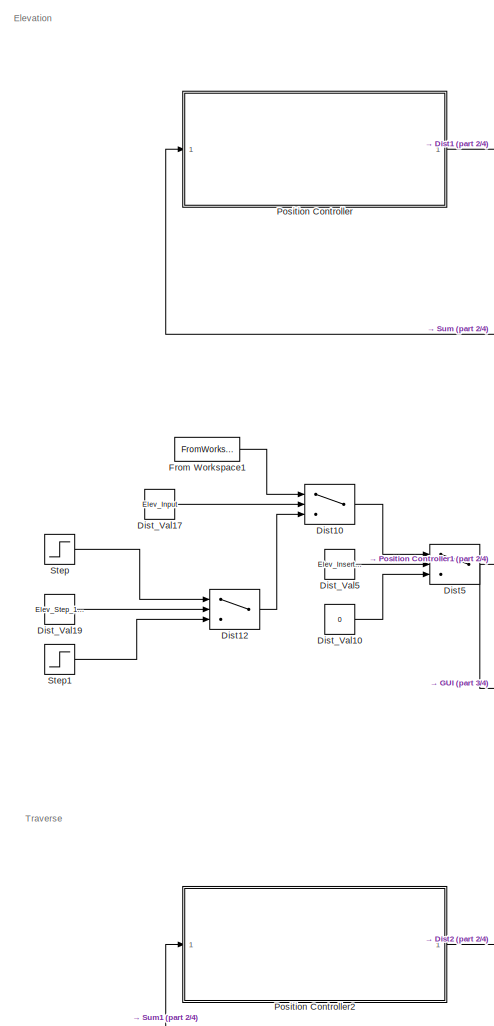
[diagram: root canvas - part 1/4, middle left region]
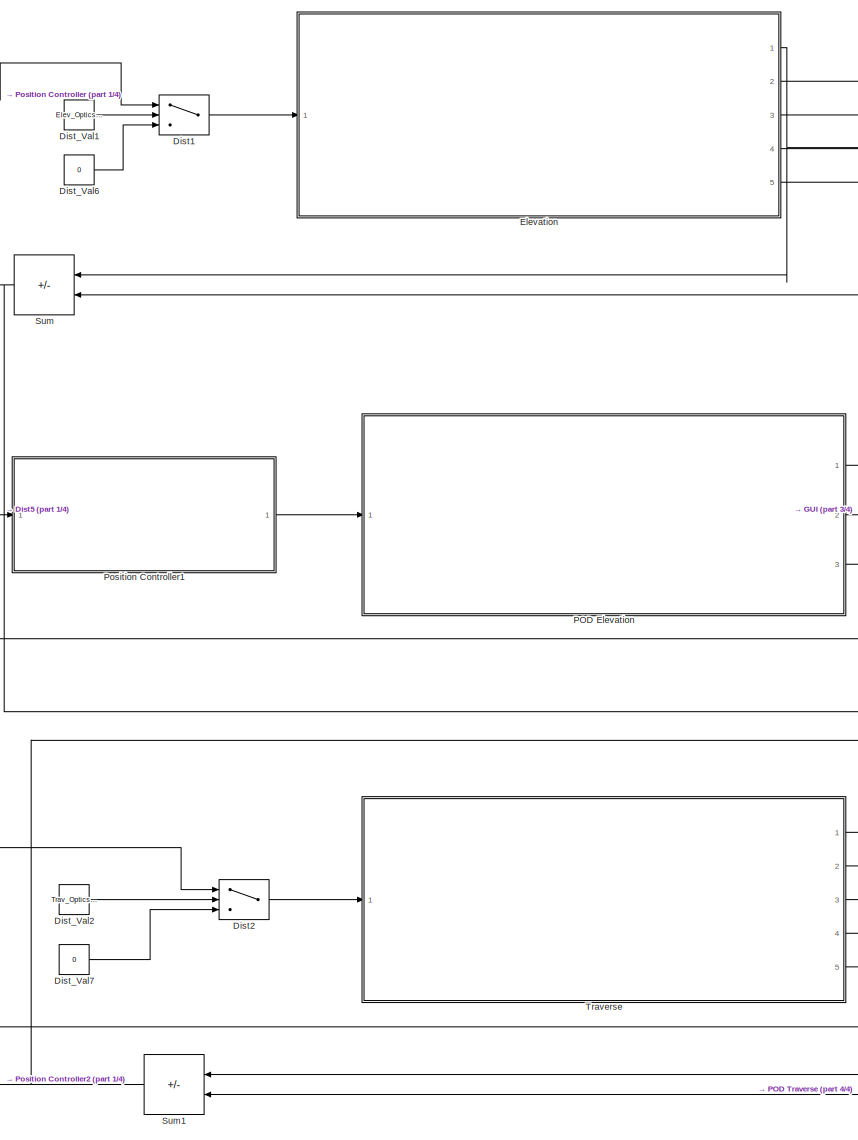
[diagram: root canvas - part 2/4, left side, full height]
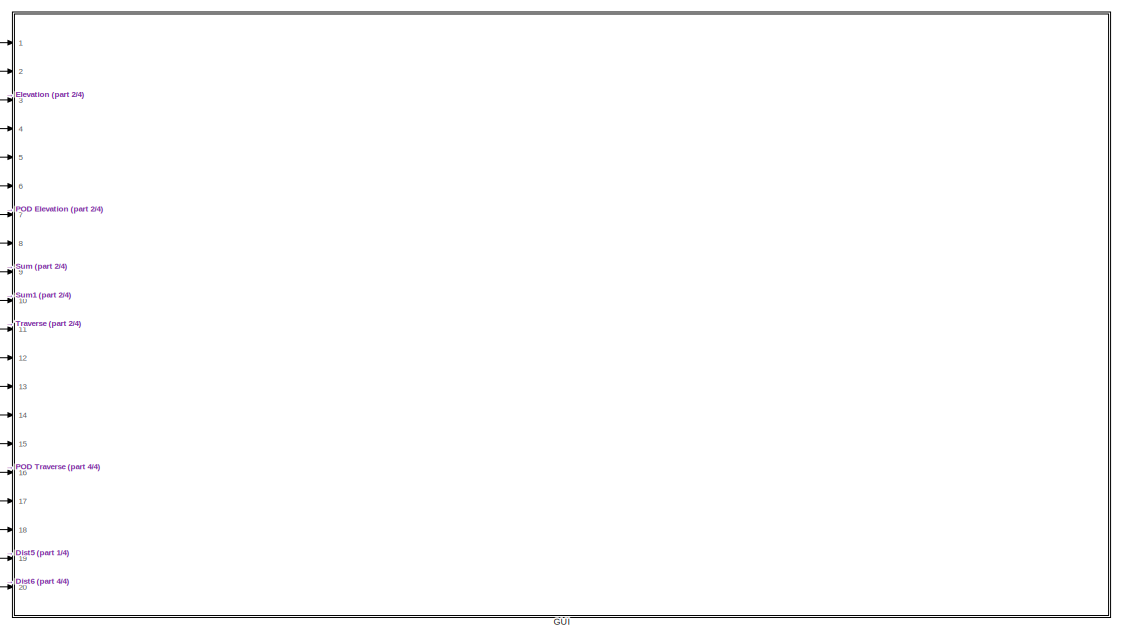
[diagram: root canvas - part 3/4, middle right region]
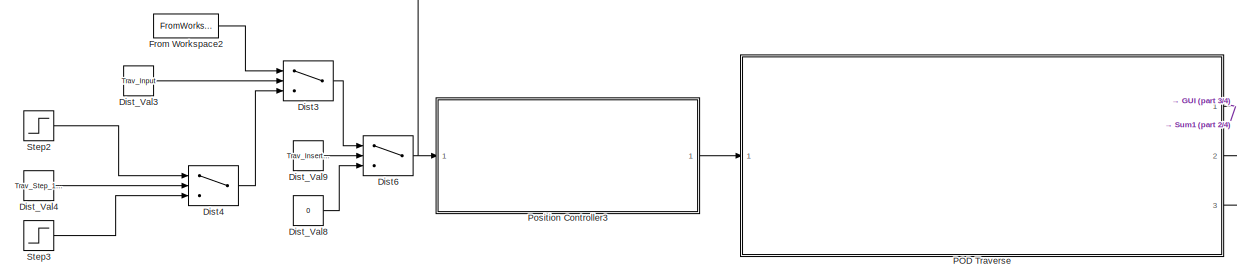
[diagram: root canvas - part 4/4, bottom left region]
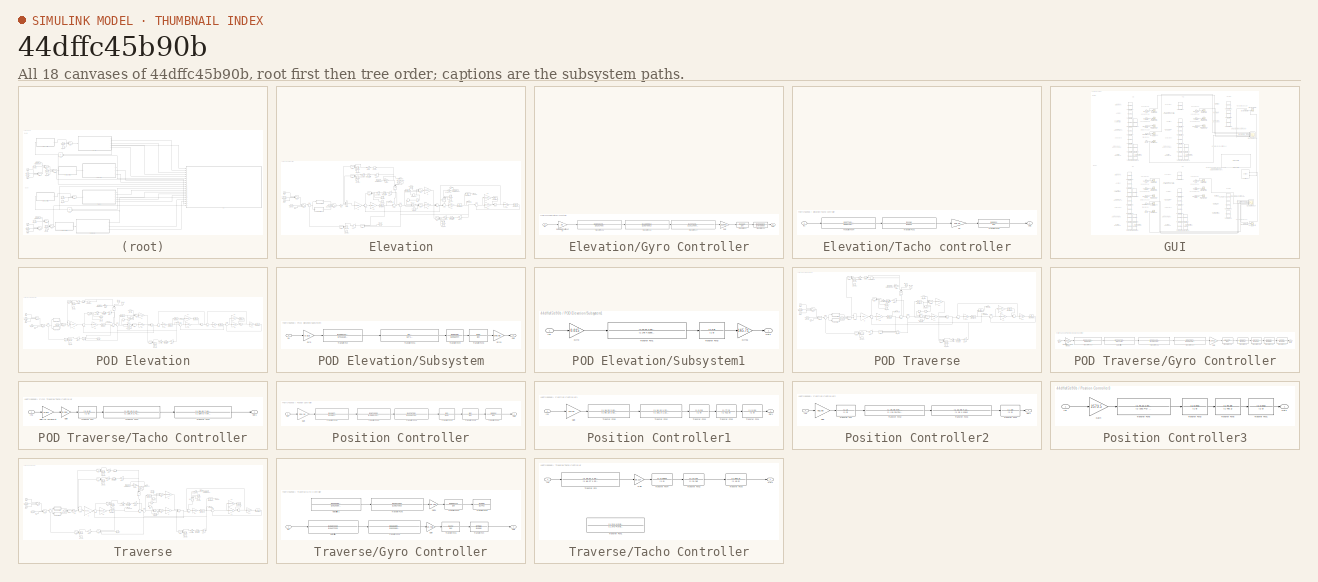
[diagram: thumbnail index - all 18 canvases of the model, root first then tree order]
MODEL slx_44dffc45b90b
KIND model
CONFIG AbsTol = auto
CONFIG EnableMultiTasking = off
CONFIG FixedStep = auto
CONFIG MaxStep = auto
CONFIG MinStep = auto
CONFIG RelTol = 1e-3
CONFIG SampleTimeConstraint = Unconstrained
CONFIG SolverName = VariableStepAuto
CONFIG StartTime = 0.0
CONFIG StopTime = 10.0
WORKSPACE source: mxarray member
WORKSPACE Elev_Anti_friction: Simulink.Parameter (value not decoded)
WORKSPACE Elev_Backlash: Simulink.Parameter (value not decoded)
WORKSPACE Elev_CL: Simulink.Parameter (value not decoded)
WORKSPACE Elev_Dist: Simulink.Parameter (value not decoded)
WORKSPACE Elev_Gun_Step: Simulink.Parameter (value not decoded)
WORKSPACE Elev_Gun_Step_1_or_0_05: Simulink.Parameter (value not decoded)
WORKSPACE Elev_Input: Simulink.Parameter (value not decoded)
WORKSPACE Elev_Insert_Input: Simulink.Parameter (value not decoded)
WORKSPACE Elev_Optics_Enabled: Simulink.Parameter (value not decoded)
WORKSPACE Elev_Pod_Backlash: Simulink.Parameter (value not decoded)
WORKSPACE Elev_Pod_CL: Simulink.Parameter (value not decoded)
WORKSPACE Elev_Pod_Friction: Simulink.Parameter (value not decoded)
WORKSPACE Elev_Pod_Step: Simulink.Parameter (value not decoded)
WORKSPACE Elev_Pod_Step_1_or_0_05: Simulink.Parameter (value not decoded)
WORKSPACE Elev_Pod_Tacho: Simulink.Parameter (value not decoded)
WORKSPACE Elev_Pod_hold: Simulink.Parameter (value not decoded)
WORKSPACE Elev_Step_1_or_0_05: Simulink.Parameter (value not decoded)
WORKSPACE Elev_Tacho: Simulink.Parameter (value not decoded)
WORKSPACE Elev_diffrentiator: Simulink.Parameter (value not decoded)
WORKSPACE Elev_fire: Simulink.Parameter (value not decoded)
WORKSPACE Elev_friction: Simulink.Parameter (value not decoded)
WORKSPACE Trav_Anti_friction: Simulink.Parameter (value not decoded)
WORKSPACE Trav_Backlash: Simulink.Parameter (value not decoded)
WORKSPACE Trav_CL: Simulink.Parameter (value not decoded)
WORKSPACE Trav_Dist: Simulink.Parameter (value not decoded)
WORKSPACE Trav_Gun_Step: Simulink.Parameter (value not decoded)
WORKSPACE Trav_Gun_Step_1_or_0_05: Simulink.Parameter (value not decoded)
WORKSPACE Trav_Input: Simulink.Parameter (value not decoded)
WORKSPACE Trav_Insert_Input: Simulink.Parameter (value not decoded)
WORKSPACE Trav_Optics_Enabled: Simulink.Parameter (value not decoded)
WORKSPACE Trav_Pod_Backlash: Simulink.Parameter (value not decoded)
WORKSPACE Trav_Pod_CL: Simulink.Parameter (value not decoded)
WORKSPACE Trav_Pod_Friction: Simulink.Parameter (value not decoded)
WORKSPACE Trav_Pod_Step: Simulink.Parameter (value not decoded)
WORKSPACE Trav_Pod_Step_1_or_0_05: Simulink.Parameter (value not decoded)
WORKSPACE Trav_Pod_Tacho: Simulink.Parameter (value not decoded)
WORKSPACE Trav_Pod_hold: Simulink.Parameter (value not decoded)
WORKSPACE Trav_Step_1_or_0_05: Simulink.Parameter (value not decoded)
WORKSPACE Trav_Tacho: Simulink.Parameter (value not decoded)
WORKSPACE Trav_diffrentiator: Simulink.Parameter (value not decoded)
WORKSPACE Trav_fire: Simulink.Parameter (value not decoded)
WORKSPACE Trav_friction: Simulink.Parameter (value not decoded)
BLOCK [Switch] Dist1
  Criteria = u2 > Threshold
  InputSameDT = off
  NameLocation = top
  SaturateOnIntegerOverflow = off
BLOCK [Switch] Dist10
  Criteria = u2 > Threshold
  InputSameDT = off
  NameLocation = top
  SaturateOnIntegerOverflow = off
BLOCK [Switch] Dist12
  Criteria = u2 > Threshold
  InputSameDT = off
  NameLocation = top
  SaturateOnIntegerOverflow = off
BLOCK [Switch] Dist2
  Criteria = u2 > Threshold
  InputSameDT = off
  NameLocation = top
  SaturateOnIntegerOverflow = off
BLOCK [Switch] Dist3
  Criteria = u2 > Threshold
  InputSameDT = off
  NameLocation = top
  SaturateOnIntegerOverflow = off
BLOCK [Switch] Dist4
  Criteria = u2 > Threshold
  InputSameDT = off
  NameLocation = top
  SaturateOnIntegerOverflow = off
BLOCK [Switch] Dist5
  Criteria = u2 > Threshold
  InputSameDT = off
  NameLocation = top
  SaturateOnIntegerOverflow = off
BLOCK [Switch] Dist6
  Criteria = u2 > Threshold
  InputSameDT = off
  NameLocation = top
  SaturateOnIntegerOverflow = off
BLOCK [Constant] Dist_Val1
  NameLocation = top
  Value = Elev_Optics_Enabled
BLOCK [Constant] Dist_Val10
  NameLocation = top
  Value = 0
BLOCK [Constant] Dist_Val17
  NameLocation = top
  Value = Elev_Input
BLOCK [Constant] Dist_Val19
  NameLocation = top
  Value = Elev_Step_1_or_0_05
  VectorParams1D = off
BLOCK [Constant] Dist_Val2
  NameLocation = top
  Value = Trav_Optics_Enabled
BLOCK [Constant] Dist_Val3
  NameLocation = top
  Value = Trav_Input
BLOCK [Constant] Dist_Val4
  NameLocation = top
  Value = Trav_Step_1_or_0_05
  VectorParams1D = off
BLOCK [Constant] Dist_Val5
  NameLocation = top
  Value = Elev_Insert_Input
BLOCK [Constant] Dist_Val6
  NameLocation = top
  Value = 0
BLOCK [Constant] Dist_Val7
  NameLocation = top
  Value = 0
BLOCK [Constant] Dist_Val8
  NameLocation = top
  Value = 0
BLOCK [Constant] Dist_Val9
  NameLocation = top
  Value = Trav_Insert_Input
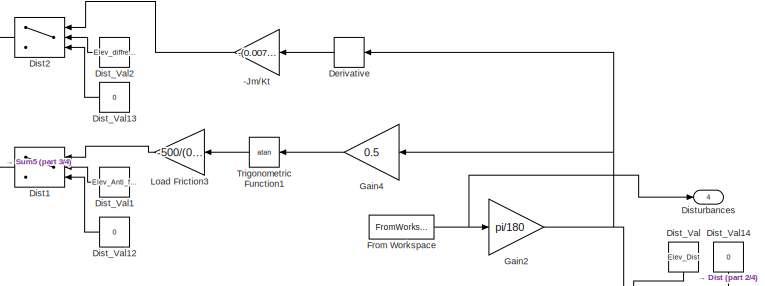
[diagram: Elevation - part 1/4, top center region]
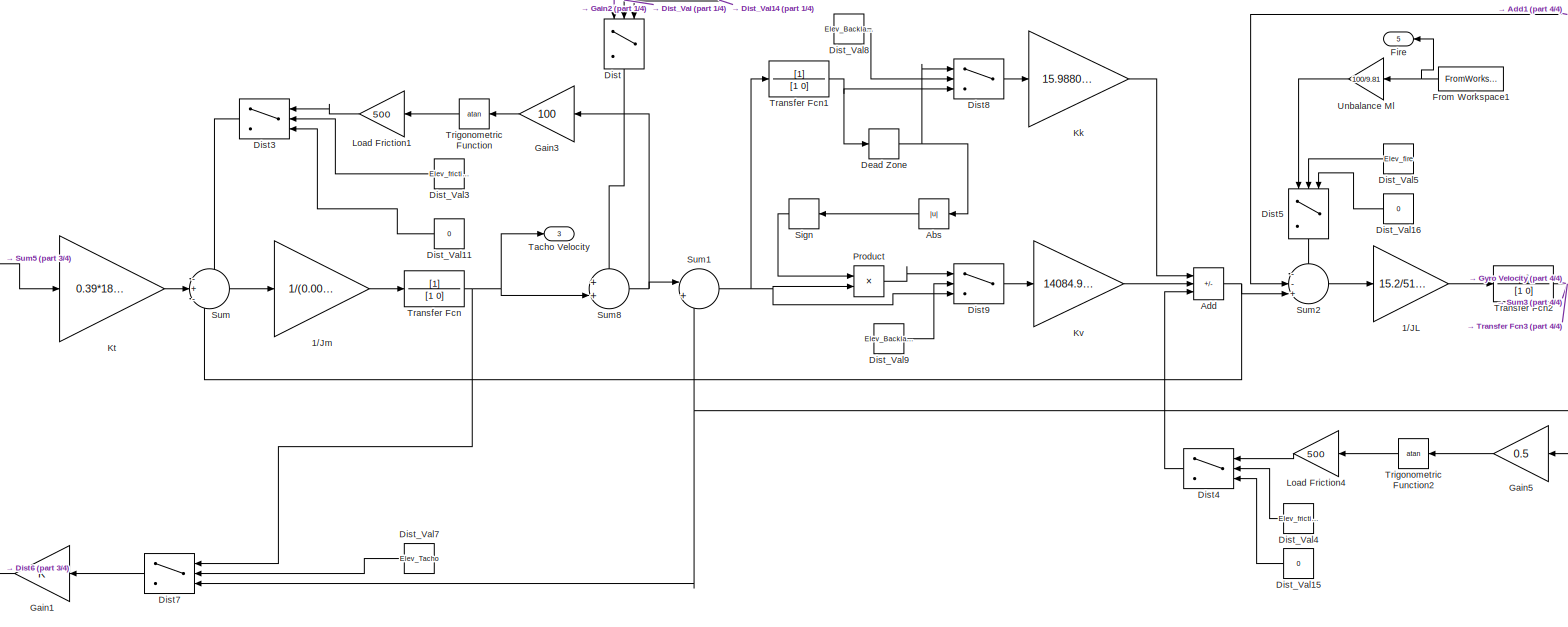
[diagram: Elevation - part 2/4, central region]
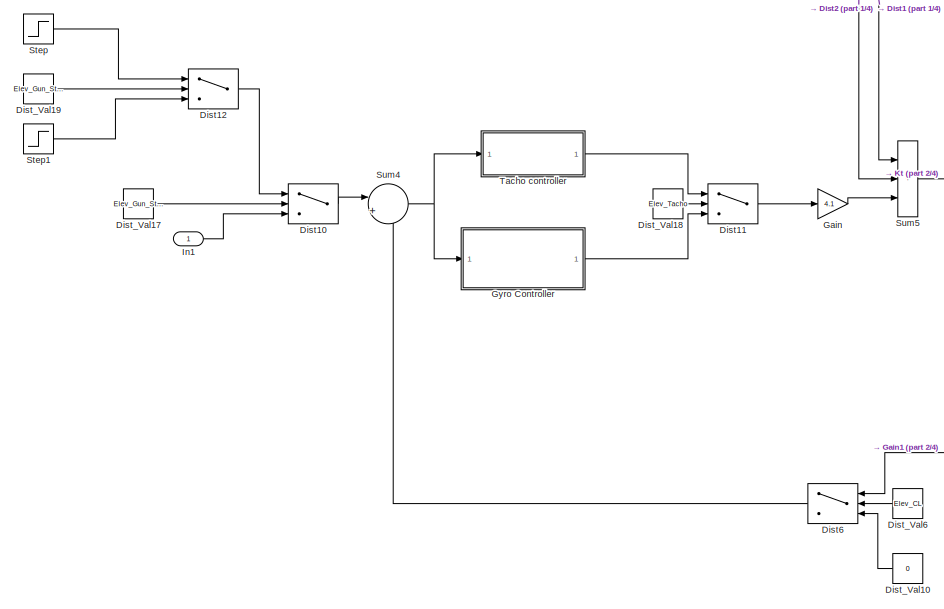
[diagram: Elevation - part 3/4, bottom left region]
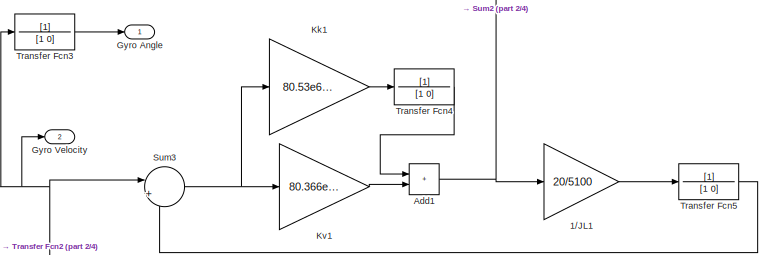
[diagram: Elevation - part 4/4, middle right region]
BLOCK [SubSystem] Elevation
  Ports = [1, 5]
  RequestExecContextInheritance = off
BLOCK [Gain] Elevation/-Jm//Kt
  Gain = -(0.007*185^2)/(0.39*185/sqrt(3))
BLOCK [Gain] Elevation/1//JL
  Gain = 15.2/5100
BLOCK [Gain] Elevation/1//JL1
  Gain = 20/5100
BLOCK [Gain] Elevation/1//Jm
  Gain = 1/(0.007*185^2)
BLOCK [Abs] Elevation/Abs
  SaturateOnIntegerOverflow = off
BLOCK [Sum] Elevation/Add
  IconShape = rectangular
  Inputs = ++-
  Ports = [3, 1]
BLOCK [Sum] Elevation/Add1
  IconShape = rectangular
  Ports = [2, 1]
BLOCK [DeadZone] Elevation/Dead Zone
  LowerValue = -0.11e-3
  UpperValue = 0.11e-3
BLOCK [Derivative] Elevation/Derivative
BLOCK [Switch] Elevation/Dist
  Criteria = u2 > Threshold
  InputSameDT = off
  NameLocation = left
  SaturateOnIntegerOverflow = off
BLOCK [Switch] Elevation/Dist1
  Criteria = u2 > Threshold
  InputSameDT = off
  NameLocation = top
  SaturateOnIntegerOverflow = off
BLOCK [Switch] Elevation/Dist10
  Criteria = u2 > Threshold
  InputSameDT = off
  NameLocation = top
  SaturateOnIntegerOverflow = off
BLOCK [Switch] Elevation/Dist11
  Criteria = u2 > Threshold
  InputSameDT = off
  NameLocation = top
  SaturateOnIntegerOverflow = off
BLOCK [Switch] Elevation/Dist12
  Criteria = u2 > Threshold
  InputSameDT = off
  NameLocation = top
  SaturateOnIntegerOverflow = off
BLOCK [Switch] Elevation/Dist2
  Criteria = u2 > Threshold
  InputSameDT = off
  NameLocation = top
  SaturateOnIntegerOverflow = off
BLOCK [Switch] Elevation/Dist3
  Criteria = u2 > Threshold
  InputSameDT = off
  NameLocation = top
  SaturateOnIntegerOverflow = off
BLOCK [Switch] Elevation/Dist4
  Criteria = u2 > Threshold
  InputSameDT = off
  NameLocation = top
  SaturateOnIntegerOverflow = off
BLOCK [Switch] Elevation/Dist5
  Criteria = u2 > Threshold
  InputSameDT = off
  NameLocation = left
  SaturateOnIntegerOverflow = off
BLOCK [Switch] Elevation/Dist6
  Criteria = u2 > Threshold
  InputSameDT = off
  NameLocation = top
  SaturateOnIntegerOverflow = off
BLOCK [Switch] Elevation/Dist7
  Criteria = u2 > Threshold
  InputSameDT = off
  NameLocation = top
  SaturateOnIntegerOverflow = off
BLOCK [Switch] Elevation/Dist8
  Criteria = u2 > Threshold
  InputSameDT = off
  NameLocation = top
  SaturateOnIntegerOverflow = off
BLOCK [Switch] Elevation/Dist9
  Criteria = u2 > Threshold
  InputSameDT = off
  NameLocation = top
  SaturateOnIntegerOverflow = off
BLOCK [Constant] Elevation/Dist_Val
  NameLocation = left
  Value = Elev_Dist
BLOCK [Constant] Elevation/Dist_Val1
  NameLocation = top
  Value = Elev_Anti_friction
BLOCK [Constant] Elevation/Dist_Val10
  NameLocation = top
  Value = 0
BLOCK [Constant] Elevation/Dist_Val11
  NameLocation = top
  Value = 0
BLOCK [Constant] Elevation/Dist_Val12
  NameLocation = top
  Value = 0
BLOCK [Constant] Elevation/Dist_Val13
  NameLocation = top
  Value = 0
BLOCK [Constant] Elevation/Dist_Val14
  NameLocation = left
  Value = 0
BLOCK [Constant] Elevation/Dist_Val15
  NameLocation = top
  Value = 0
BLOCK [Constant] Elevation/Dist_Val16
  NameLocation = top
  Value = 0
BLOCK [Constant] Elevation/Dist_Val17
  NameLocation = top
  Value = Elev_Gun_Step
BLOCK [Constant] Elevation/Dist_Val18
  NameLocation = top
  Value = Elev_Tacho
BLOCK [Constant] Elevation/Dist_Val19
  NameLocation = top
  Value = Elev_Gun_Step_1_or_0_05
BLOCK [Constant] Elevation/Dist_Val2
  NameLocation = top
  Value = Elev_diffrentiator
BLOCK [Constant] Elevation/Dist_Val3
  NameLocation = top
  Value = Elev_friction
BLOCK [Constant] Elevation/Dist_Val4
  NameLocation = top
  Value = Elev_friction
BLOCK [Constant] Elevation/Dist_Val5
  NameLocation = top
  Value = Elev_fire
BLOCK [Constant] Elevation/Dist_Val6
  NameLocation = top
  Value = Elev_CL
BLOCK [Constant] Elevation/Dist_Val7
  NameLocation = top
  Value = Elev_Tacho
BLOCK [Constant] Elevation/Dist_Val8
  NameLocation = top
  Value = Elev_Backlash
BLOCK [Constant] Elevation/Dist_Val9
  NameLocation = top
  Value = Elev_Backlash
BLOCK [Outport] Elevation/Disturbances
  Port = 4
BLOCK [Outport] Elevation/Fire
  Port = 5
BLOCK [FromWorkspace] Elevation/From Workspace
  OutputAfterFinalValue = Setting to zero
  VariableName = eldist
BLOCK [FromWorkspace] Elevation/From Workspace1
  OutputAfterFinalValue = Setting to zero
  VariableName = firegz
BLOCK [Gain] Elevation/Gain
  Gain = 4.1
BLOCK [Gain] Elevation/Gain1
BLOCK [Gain] Elevation/Gain2
  Gain = pi/180
BLOCK [Gain] Elevation/Gain3
  Gain = 100
BLOCK [Gain] Elevation/Gain4
  Gain = 0.5
BLOCK [Gain] Elevation/Gain5
  Gain = 0.5
BLOCK [Outport] Elevation/Gyro Angle
BLOCK [SubSystem] Elevation/Gyro Controller
  Ports = [1, 1]
  RequestExecContextInheritance = off
BLOCK [Gain] Elevation/Gyro Controller/Gain
  Gain = 32.9451
BLOCK [Gain] Elevation/Gyro Controller/Gain for match without pi
  Gain = 26
BLOCK [Inport] Elevation/Gyro Controller/In1
BLOCK [Outport] Elevation/Gyro Controller/Out1
BLOCK [TransferFcn] Elevation/Gyro Controller/Transfer Fcn
  Denominator = [1 0]
  Numerator = [1 10.18]
BLOCK [TransferFcn] Elevation/Gyro Controller/Transfer Fcn1
  Denominator = [1 787.0889]
  Numerator = [1 203.3354]
BLOCK [TransferFcn] Elevation/Gyro Controller/Transfer Fcn2
  Denominator = [1 28.57 9981]
  Numerator = [1 11.38 9981]
BLOCK [TransferFcn] Elevation/Gyro Controller/Transfer Fcn3
  Denominator = [1 5.25 2495]
  Numerator = [1 3.8938 2495]
BLOCK [TransferFcn] Elevation/Gyro Controller/Transfer Fcn7
  Denominator = [1 191 2.756e4]
  Numerator = [1 14.74 2.756e4]
BLOCK [Outport] Elevation/Gyro Velocity
  Port = 2
BLOCK [Inport] Elevation/In1
BLOCK [Gain] Elevation/Kk
  Gain = 15.98805984e6/7.9
BLOCK [Gain] Elevation/Kk1
  Gain = 80.53e6/20
BLOCK [Gain] Elevation/Kt
  Gain = 0.39*185/sqrt(3)
BLOCK [Gain] Elevation/Kv
  Gain = 14084.96289/3.6
BLOCK [Gain] Elevation/Kv1
  Gain = 80.366e3/15
BLOCK [Gain] Elevation/Load Friction1
  Gain = 500
BLOCK [Gain] Elevation/Load Friction3
  Gain = -500/(0.39*185/sqrt(3))
BLOCK [Gain] Elevation/Load Friction4
  Gain = 500
BLOCK [Product] Elevation/Product
  Ports = [2, 1]
BLOCK [Signum] Elevation/Sign
BLOCK [Step] Elevation/Step
  SampleTime = 0
BLOCK [Step] Elevation/Step1
  After = 0.05
  SampleTime = 0
BLOCK [Sum] Elevation/Sum
  Inputs = -+-
  Ports = [3, 1]
BLOCK [Sum] Elevation/Sum1
  Inputs = |+-
  NameLocation = top
  Ports = [2, 1]
BLOCK [Sum] Elevation/Sum2
  Inputs = --+||
  NameLocation = top
  Ports = [3, 1]
BLOCK [Sum] Elevation/Sum3
  Inputs = |+-
  NameLocation = top
  Ports = [2, 1]
BLOCK [Sum] Elevation/Sum4
  Inputs = |+-
  NameLocation = top
  Ports = [2, 1]
BLOCK [Sum] Elevation/Sum5
  IconShape = rectangular
  Inputs = +++
  Ports = [3, 1]
BLOCK [Sum] Elevation/Sum8
  Inputs = ++|
  NameLocation = top
  Ports = [2, 1]
BLOCK [Outport] Elevation/Tacho Velocity
  Port = 3
BLOCK [SubSystem] Elevation/Tacho controller
  Ports = [1, 1]
  RequestExecContextInheritance = off
BLOCK [Inport] Elevation/Tacho controller/In1
BLOCK [Outport] Elevation/Tacho controller/Out1
BLOCK [TransferFcn] Elevation/Tacho controller/Transfer Fcn2
  Denominator = [1 35.33]
  Numerator = [1 313.6]
BLOCK [TransferFcn] Elevation/Tacho controller/Transfer Fcn4
  Denominator = [1 65.67 1.017e4]
  Numerator = [1 20.77 1.017e4]
BLOCK [TransferFcn] Elevation/Tacho controller/Transfer Fcn5
  Denominator = [1 0]
  Numerator = [1 0.0001]
BLOCK [Gain] Elevation/Tacho controller/a5
  Gain = 129.13
BLOCK [TransferFcn] Elevation/Transfer Fcn
  Denominator = [1 0]
BLOCK [TransferFcn] Elevation/Transfer Fcn1
  Denominator = [1 0]
BLOCK [TransferFcn] Elevation/Transfer Fcn2
  Denominator = [1 0]
BLOCK [TransferFcn] Elevation/Transfer Fcn3
  Denominator = [1 0]
BLOCK [TransferFcn] Elevation/Transfer Fcn4
  Denominator = [1 0]
BLOCK [TransferFcn] Elevation/Transfer Fcn5
  Denominator = [1 0]
BLOCK [Trigonometry] Elevation/Trigonometric Function
  Operator = atan
  Ports = [1, 1]
BLOCK [Trigonometry] Elevation/Trigonometric Function1
  Operator = atan
  Ports = [1, 1]
BLOCK [Trigonometry] Elevation/Trigonometric Function2
  Operator = atan
  Ports = [1, 1]
BLOCK [Gain] Elevation/Unbalance Ml
  Gain = 100/9.81
BLOCK [FromWorkspace] From Workspace1
  VariableName = targety
BLOCK [FromWorkspace] From Workspace2
  VariableName = targetx
BLOCK [SubSystem] GUI
  Ports = [20]
  RequestExecContextInheritance = off
BLOCK [CallbackButton] GUI/Callback Button
  ButtonText = RUN
  ClickFcn = mdlWks = get_param('Both_Systems_GUI','ModelWorkspace');\ndist = getVariable(mdlWks, "Trav_Dist");\nfire = getVariable(mdlWks, "Trav_fire");\ntrack = getVariable(mdlWks, "Trav_Input");\ntrackInsert = getVariable(mdlWks, "Trav_Insert_Input");\ndist2 = getVariable(mdlWks, "Elev_Dist");\nfire2 = getVariable(mdlWks, "Elev_fire");\ntrack2 = getVariable(mdlWks, "Elev_Input");\ntrackInsert2 = getVariable(mdlWks,...<+321ch>
BLOCK [Scope] GUI/Elev Complete Scope
  Floating = off
  NumInputPorts = 6
  Ports = [6]
  ScopeSpecificationString = Simulink.scopes.TimeScopeBlockCfg('CurrentConfiguration', extmgr.ConfigurationSet(extmgr.Configuration('Core','General UI',true),extmgr.Configuration('Core','Source UI',true),extmgr.Configuration('Sources','WiredSimulink',true,'DataLoggingVariableName','ScopeData1'),extmgr.Configuration('Visuals','Time Domain',true,'SerializedDisplays',{struct('MinYLimReal','-28.23648','MaxYLimReal','27.5147','YLa...<+5271ch>
BLOCK [Inport] GUI/Elev Current Input
  Port = 19
BLOCK [Inport] GUI/Elev Disturbances
  Port = 4
BLOCK [Scope] GUI/Elev Disturbances Scope
  Floating = off
  NumInputPorts = 1
  Ports = [1]
  ScopeSpecificationString = Simulink.scopes.TimeScopeBlockCfg('CurrentConfiguration', extmgr.ConfigurationSet(extmgr.Configuration('Core','General UI',true),extmgr.Configuration('Core','Source UI',true),extmgr.Configuration('Sources','WiredSimulink',true,'DataLoggingVariableName','ScopeData4'),extmgr.Configuration('Visuals','Time Domain',true,'SerializedDisplays',{struct('MinYLimReal','-0.18738','MaxYLimReal','0.19955','YLab...<+1679ch>
BLOCK [Inport] GUI/Elev Fire
  Port = 5
BLOCK [Scope] GUI/Elev Fire Scope
  Floating = off
  NumInputPorts = 1
  Ports = [1]
  ScopeSpecificationString = Simulink.scopes.TimeScopeBlockCfg('CurrentConfiguration', extmgr.ConfigurationSet(extmgr.Configuration('Core','General UI',true),extmgr.Configuration('Core','Source UI',true),extmgr.Configuration('Sources','WiredSimulink',true,'DataLoggingVariableName','ScopeData5'),extmgr.Configuration('Visuals','Time Domain',true,'SerializedDisplays',{struct('MinYLimReal','-20.45898','MaxYLimReal','16.16211','YL...<+1682ch>
BLOCK [Inport] GUI/Elev Gun Gyro Angle
BLOCK [Scope] GUI/Elev Gun Gyro Angle Scope
  Floating = off
  NumInputPorts = 1
  Ports = [1]
  ScopeSpecificationString = Simulink.scopes.TimeScopeBlockCfg('CurrentConfiguration', extmgr.ConfigurationSet(extmgr.Configuration('Core','General UI',true),extmgr.Configuration('Core','Source UI',true),extmgr.Configuration('Sources','WiredSimulink',true,'DataLoggingVariableName','ScopeData1'),extmgr.Configuration('Visuals','Time Domain',true,'SerializedDisplays',{struct('MinYLimReal','-0.00238','MaxYLimReal','0.00128','YLab...<+1726ch>
BLOCK [Inport] GUI/Elev Gun Gyro Velocity
  Port = 2
BLOCK [Scope] GUI/Elev Gun Gyro Velocity Scope
  Floating = off
  NumInputPorts = 1
  Ports = [1]
  ScopeSpecificationString = Simulink.scopes.TimeScopeBlockCfg('CurrentConfiguration', extmgr.ConfigurationSet(extmgr.Configuration('Core','General UI',true),extmgr.Configuration('Core','Source UI',true),extmgr.Configuration('Sources','WiredSimulink',true,'DataLoggingVariableName','ScopeData2'),extmgr.Configuration('Visuals','Time Domain',true,'SerializedDisplays',{struct('MinYLimReal','-0.95094','MaxYLimReal','8.50831','YLab...<+1704ch>
BLOCK [Inport] GUI/Elev Gun Tacho Velocity
  Port = 3
BLOCK [Scope] GUI/Elev Gun Tacho Velocity Scope
  Floating = off
  NumInputPorts = 1
  Ports = [1]
  ScopeSpecificationString = Simulink.scopes.TimeScopeBlockCfg('CurrentConfiguration', extmgr.ConfigurationSet(extmgr.Configuration('Core','General UI',true),extmgr.Configuration('Core','Source UI',true),extmgr.Configuration('Sources','WiredSimulink',true,'DataLoggingVariableName','ScopeData3'),extmgr.Configuration('Visuals','Time Domain',true,'SerializedDisplays',{struct('MinYLimReal','-1.33703','MaxYLimReal','8.55383','YLab...<+1709ch>
BLOCK [Inport] GUI/Elev Pod Gyro Angle
  Port = 6
BLOCK [Scope] GUI/Elev Pod Gyro Angle Scope
  Floating = off
  NumInputPorts = 1
  Ports = [1]
  ScopeSpecificationString = Simulink.scopes.TimeScopeBlockCfg('CurrentConfiguration', extmgr.ConfigurationSet(extmgr.Configuration('Core','General UI',true),extmgr.Configuration('Core','Source UI',true),extmgr.Configuration('Sources','WiredSimulink',true,'DataLoggingVariableName','ScopeData3'),extmgr.Configuration('Visuals','Time Domain',true,'SerializedDisplays',{struct('MinYLimReal','-0.00161','MaxYLimReal','0.00063','YLab...<+1678ch>
BLOCK [Inport] GUI/Elev Pod Gyro Velocity
  Port = 7
BLOCK [Scope] GUI/Elev Pod Gyro Velocity Scope
  Floating = off
  NumInputPorts = 1
  Ports = [1]
  ScopeSpecificationString = Simulink.scopes.TimeScopeBlockCfg('CurrentConfiguration', extmgr.ConfigurationSet(extmgr.Configuration('Core','General UI',true),extmgr.Configuration('Core','Source UI',true),extmgr.Configuration('Sources','WiredSimulink',true,'DataLoggingVariableName','ScopeData4'),extmgr.Configuration('Visuals','Time Domain',true,'SerializedDisplays',{struct('MinYLimReal','-0.96799','MaxYLimReal','8.51029','YLab...<+1701ch>
BLOCK [Inport] GUI/Elev Pod Tacho Velocity
  Port = 8
BLOCK [Scope] GUI/Elev Pod Tacho Velocity Scope
  Floating = off
  NumInputPorts = 1
  Ports = [1]
  ScopeSpecificationString = Simulink.scopes.TimeScopeBlockCfg('CurrentConfiguration', extmgr.ConfigurationSet(extmgr.Configuration('Core','General UI',true),extmgr.Configuration('Core','Source UI',true),extmgr.Configuration('Sources','WiredSimulink',true,'DataLoggingVariableName','ScopeData5'),extmgr.Configuration('Visuals','Time Domain',true,'SerializedDisplays',{struct('MinYLimReal','-1.11698','MaxYLimReal','8.52676','YLab...<+1706ch>
BLOCK [Inport] GUI/Elev Tracking error
  Port = 9
BLOCK [Scope] GUI/Elev Tracking error angle
  Floating = off
  NumInputPorts = 1
  Ports = [1]
  ScopeSpecificationString = Simulink.scopes.TimeScopeBlockCfg('CurrentConfiguration', extmgr.ConfigurationSet(extmgr.Configuration('Core','General UI',true),extmgr.Configuration('Core','Source UI',true),extmgr.Configuration('Sources','WiredSimulink',true),extmgr.Configuration('Visuals','Time Domain',true,'SerializedDisplays',{struct('MinYLimReal','-0.00109','MaxYLimReal','0.00129','YLabelReal','Tracking Error Angle (radians)...<+1711ch>
BLOCK [ToggleSwitchBlock] GUI/Toggle Switch1
BLOCK [ToggleSwitchBlock] GUI/Toggle Switch10
BLOCK [ToggleSwitchBlock] GUI/Toggle Switch11
BLOCK [ToggleSwitchBlock] GUI/Toggle Switch12
BLOCK [ToggleSwitchBlock] GUI/Toggle Switch13
BLOCK [ToggleSwitchBlock] GUI/Toggle Switch14
BLOCK [ToggleSwitchBlock] GUI/Toggle Switch15
BLOCK [ToggleSwitchBlock] GUI/Toggle Switch16
BLOCK [ToggleSwitchBlock] GUI/Toggle Switch17
BLOCK [ToggleSwitchBlock] GUI/Toggle Switch18
BLOCK [ToggleSwitchBlock] GUI/Toggle Switch19
BLOCK [ToggleSwitchBlock] GUI/Toggle Switch2
BLOCK [ToggleSwitchBlock] GUI/Toggle Switch20
BLOCK [ToggleSwitchBlock] GUI/Toggle Switch21
BLOCK [ToggleSwitchBlock] GUI/Toggle Switch22
BLOCK [ToggleSwitchBlock] GUI/Toggle Switch23
BLOCK [ToggleSwitchBlock] GUI/Toggle Switch24
BLOCK [ToggleSwitchBlock] GUI/Toggle Switch25
BLOCK [ToggleSwitchBlock] GUI/Toggle Switch26
BLOCK [ToggleSwitchBlock] GUI/Toggle Switch27
BLOCK [ToggleSwitchBlock] GUI/Toggle Switch28
BLOCK [ToggleSwitchBlock] GUI/Toggle Switch29
BLOCK [ToggleSwitchBlock] GUI/Toggle Switch3
BLOCK [ToggleSwitchBlock] GUI/Toggle Switch30
BLOCK [ToggleSwitchBlock] GUI/Toggle Switch31
BLOCK [ToggleSwitchBlock] GUI/Toggle Switch32
BLOCK [ToggleSwitchBlock] GUI/Toggle Switch33
BLOCK [ToggleSwitchBlock] GUI/Toggle Switch34
BLOCK [ToggleSwitchBlock] GUI/Toggle Switch35
BLOCK [ToggleSwitchBlock] GUI/Toggle Switch36
BLOCK [ToggleSwitchBlock] GUI/Toggle Switch37
BLOCK [ToggleSwitchBlock] GUI/Toggle Switch38
BLOCK [ToggleSwitchBlock] GUI/Toggle Switch39
BLOCK [ToggleSwitchBlock] GUI/Toggle Switch4
BLOCK [ToggleSwitchBlock] GUI/Toggle Switch40
BLOCK [ToggleSwitchBlock] GUI/Toggle Switch41
BLOCK [ToggleSwitchBlock] GUI/Toggle Switch42
BLOCK [ToggleSwitchBlock] GUI/Toggle Switch5
BLOCK [ToggleSwitchBlock] GUI/Toggle Switch6
BLOCK [ToggleSwitchBlock] GUI/Toggle Switch7
BLOCK [ToggleSwitchBlock] GUI/Toggle Switch8
BLOCK [ToggleSwitchBlock] GUI/Toggle Switch9
BLOCK [Scope] GUI/Trav Complete Scope
  Floating = off
  NumInputPorts = 6
  Ports = [6]
  ScopeSpecificationString = Simulink.scopes.TimeScopeBlockCfg('CurrentConfiguration', extmgr.ConfigurationSet(extmgr.Configuration('Core','General UI',true),extmgr.Configuration('Core','Source UI',true),extmgr.Configuration('Sources','WiredSimulink',true,'DataLoggingVariableName','ScopeData2'),extmgr.Configuration('Visuals','Time Domain',true,'SerializedDisplays',{struct('MinYLimReal','-10.73589','MaxYLimReal','11.44717','YL...<+5249ch>
BLOCK [Inport] GUI/Trav Current Input
  Port = 20
BLOCK [Inport] GUI/Trav Disturbances
  Port = 14
BLOCK [Scope] GUI/Trav Disturbances Scope
  Floating = off
  NumInputPorts = 1
  Ports = [1]
  ScopeSpecificationString = Simulink.scopes.TimeScopeBlockCfg('CurrentConfiguration', extmgr.ConfigurationSet(extmgr.Configuration('Core','General UI',true),extmgr.Configuration('Core','Source UI',true),extmgr.Configuration('Sources','WiredSimulink',true,'DataLoggingVariableName','ScopeData1'),extmgr.Configuration('Visuals','Time Domain',true,'SerializedDisplays',{struct('MinYLimReal','-0.18738','MaxYLimReal','0.19955','YLab...<+1679ch>
BLOCK [Inport] GUI/Trav Fire
  Port = 15
BLOCK [Scope] GUI/Trav Fire Scope
  Floating = off
  NumInputPorts = 1
  Ports = [1]
  ScopeSpecificationString = Simulink.scopes.TimeScopeBlockCfg('CurrentConfiguration', extmgr.ConfigurationSet(extmgr.Configuration('Core','General UI',true),extmgr.Configuration('Core','Source UI',true),extmgr.Configuration('Sources','WiredSimulink',true,'DataLoggingVariableName','ScopeData2'),extmgr.Configuration('Visuals','Time Domain',true,'SerializedDisplays',{struct('MinYLimReal','-20.45898','MaxYLimReal','16.16211','YL...<+1682ch>
BLOCK [Inport] GUI/Trav Gun Gyro Angle
  Port = 11
BLOCK [Scope] GUI/Trav Gun Gyro Angle Scope
  Floating = off
  NumInputPorts = 1
  Ports = [1]
  ScopeSpecificationString = Simulink.scopes.TimeScopeBlockCfg('CurrentConfiguration', extmgr.ConfigurationSet(extmgr.Configuration('Core','General UI',true),extmgr.Configuration('Core','Source UI',true),extmgr.Configuration('Sources','WiredSimulink',true,'DataLoggingVariableName','ScopeData3'),extmgr.Configuration('Visuals','Time Domain',true,'SerializedDisplays',{struct('MinYLimReal','-17.86044','MaxYLimReal','160.74399','Y...<+1731ch>
BLOCK [Inport] GUI/Trav Gun Gyro Velocity
  Port = 12
BLOCK [Scope] GUI/Trav Gun Gyro Velocity Scope
  Floating = off
  NumInputPorts = 1
  Ports = [1]
  ScopeSpecificationString = Simulink.scopes.TimeScopeBlockCfg('CurrentConfiguration', extmgr.ConfigurationSet(extmgr.Configuration('Core','General UI',true),extmgr.Configuration('Core','Source UI',true),extmgr.Configuration('Sources','WiredSimulink',true,'DataLoggingVariableName','ScopeData4'),extmgr.Configuration('Visuals','Time Domain',true,'SerializedDisplays',{struct('MinYLimReal','-0.95094','MaxYLimReal','8.50831','YLab...<+1704ch>
BLOCK [Inport] GUI/Trav Gun Tacho Velocity
  Port = 13
BLOCK [Scope] GUI/Trav Gun Tacho Velocity Scope
  Floating = off
  NumInputPorts = 1
  Ports = [1]
  ScopeSpecificationString = Simulink.scopes.TimeScopeBlockCfg('CurrentConfiguration', extmgr.ConfigurationSet(extmgr.Configuration('Core','General UI',true),extmgr.Configuration('Core','Source UI',true),extmgr.Configuration('Sources','WiredSimulink',true,'DataLoggingVariableName','ScopeData5'),extmgr.Configuration('Visuals','Time Domain',true,'SerializedDisplays',{struct('MinYLimReal','-1.33703','MaxYLimReal','8.55383','YLab...<+1709ch>
BLOCK [Inport] GUI/Trav Pod Gyro Angle
  Port = 16
BLOCK [Scope] GUI/Trav Pod Gyro Angle Scope
  Floating = off
  NumInputPorts = 1
  Ports = [1]
  ScopeSpecificationString = Simulink.scopes.TimeScopeBlockCfg('CurrentConfiguration', extmgr.ConfigurationSet(extmgr.Configuration('Core','General UI',true),extmgr.Configuration('Core','Source UI',true),extmgr.Configuration('Sources','WiredSimulink',true,'DataLoggingVariableName','ScopeData6'),extmgr.Configuration('Visuals','Time Domain',true,'SerializedDisplays',{struct('MinYLimReal','-17.86044','MaxYLimReal','160.74398','Y...<+1688ch>
BLOCK [Inport] GUI/Trav Pod Gyro Velocity
  Port = 17
BLOCK [Scope] GUI/Trav Pod Gyro Velocity Scope
  Floating = off
  NumInputPorts = 1
  Ports = [1]
  ScopeSpecificationString = Simulink.scopes.TimeScopeBlockCfg('CurrentConfiguration', extmgr.ConfigurationSet(extmgr.Configuration('Core','General UI',true),extmgr.Configuration('Core','Source UI',true),extmgr.Configuration('Sources','WiredSimulink',true,'DataLoggingVariableName','ScopeData7'),extmgr.Configuration('Visuals','Time Domain',true,'SerializedDisplays',{struct('MinYLimReal','-0.96799','MaxYLimReal','8.51029','YLab...<+1701ch>
BLOCK [Inport] GUI/Trav Pod Tacho Velocity
  Port = 18
BLOCK [Scope] GUI/Trav Pod Tacho Velocity Scope
  Floating = off
  NumInputPorts = 1
  Ports = [1]
  ScopeSpecificationString = Simulink.scopes.TimeScopeBlockCfg('CurrentConfiguration', extmgr.ConfigurationSet(extmgr.Configuration('Core','General UI',true),extmgr.Configuration('Core','Source UI',true),extmgr.Configuration('Sources','WiredSimulink',true,'DataLoggingVariableName','ScopeData8'),extmgr.Configuration('Visuals','Time Domain',true,'SerializedDisplays',{struct('MinYLimReal','-1.11698','MaxYLimReal','8.52676','YLab...<+1706ch>
BLOCK [Inport] GUI/Trav Tracking error
  Port = 10
BLOCK [Scope] GUI/Trav Tracking error angle
  Floating = off
  NumInputPorts = 1
  Ports = [1]
  ScopeSpecificationString = Simulink.scopes.TimeScopeBlockCfg('CurrentConfiguration', extmgr.ConfigurationSet(extmgr.Configuration('Core','General UI',true),extmgr.Configuration('Core','Source UI',true),extmgr.Configuration('Sources','WiredSimulink',true,'DataLoggingVariableName','ScopeData9'),extmgr.Configuration('Visuals','Time Domain',true,'SerializedDisplays',{struct('MinYLimReal','-0.00039','MaxYLimReal','0.0006','YLabe...<+1748ch>
BLOCK [Reference] GUI/XY Graph  REF=simulink/Sinks/XY Graph
  Ports = [2]
  SourceBlock = simulink/Sinks/XY Graph
  SourceProductBaseCode = SL
  SourceType = XY scope.
BLOCK [SubSystem] POD Elevation
  Ports = [1, 3]
  RequestExecContextInheritance = off
BLOCK [Gain] POD Elevation/1//JL1
  Gain = 1000/2.15
BLOCK [Gain] POD Elevation/1//JL2
  Gain = 2500/2.15
BLOCK [Gain] POD Elevation/1//JL3
  Gain = 2500/0.6215
BLOCK [Gain] POD Elevation/1//Jm
  Gain = 1/0.015
BLOCK [Abs] POD Elevation/Abs
  SaturateOnIntegerOverflow = off
BLOCK [Sum] POD Elevation/Add
  IconShape = rectangular
  Inputs = ++-
  Ports = [3, 1]
BLOCK [Sum] POD Elevation/Add1
  IconShape = rectangular
  Ports = [2, 1]
BLOCK [Sum] POD Elevation/Add2
  IconShape = rectangular
  Ports = [2, 1]
BLOCK [DeadZone] POD Elevation/Dead Zone
  LowerValue = -0.07e-5
  UpperValue = 0.07e-5
BLOCK [Switch] POD Elevation/Dist
  Criteria = u2 > Threshold
  InputSameDT = off
  NameLocation = left
  SaturateOnIntegerOverflow = off
BLOCK [Switch] POD Elevation/Dist1
  Criteria = u2 > Threshold
  InputSameDT = off
  NameLocation = top
  SaturateOnIntegerOverflow = off
BLOCK [Switch] POD Elevation/Dist10
  Criteria = u2 > Threshold
  InputSameDT = off
  NameLocation = top
  SaturateOnIntegerOverflow = off
BLOCK [Switch] POD Elevation/Dist11
  Criteria = u2 > Threshold
  InputSameDT = off
  NameLocation = top
  SaturateOnIntegerOverflow = off
BLOCK [Switch] POD Elevation/Dist12
  Criteria = u2 > Threshold
  InputSameDT = off
  NameLocation = top
  SaturateOnIntegerOverflow = off
BLOCK [Switch] POD Elevation/Dist2
  Criteria = u2 > Threshold
  InputSameDT = off
  NameLocation = top
  SaturateOnIntegerOverflow = off
BLOCK [Switch] POD Elevation/Dist4
  Criteria = u2 > Threshold
  InputSameDT = off
  NameLocation = top
  SaturateOnIntegerOverflow = off
BLOCK [Switch] POD Elevation/Dist6
  Criteria = u2 > Threshold
  InputSameDT = off
  NameLocation = top
  SaturateOnIntegerOverflow = off
BLOCK [Switch] POD Elevation/Dist7
  Criteria = u2 > Threshold
  InputSameDT = off
  NameLocation = top
  SaturateOnIntegerOverflow = off
BLOCK [Switch] POD Elevation/Dist8
  Criteria = u2 > Threshold
  InputSameDT = off
  NameLocation = top
  SaturateOnIntegerOverflow = off
BLOCK [Switch] POD Elevation/Dist9
  Criteria = u2 > Threshold
  InputSameDT = off
  NameLocation = top
  SaturateOnIntegerOverflow = off
BLOCK [Constant] POD Elevation/Dist_Val
  NameLocation = left
  Value = Elev_Dist
BLOCK [Constant] POD Elevation/Dist_Val1
  NameLocation = top
  Value = Elev_Pod_hold
BLOCK [Constant] POD Elevation/Dist_Val10
  NameLocation = top
  Value = 0
BLOCK [Constant] POD Elevation/Dist_Val12
  NameLocation = top
  Value = 0
BLOCK [Constant] POD Elevation/Dist_Val15
  NameLocation = top
  Value = 0
BLOCK [Constant] POD Elevation/Dist_Val17
  NameLocation = top
  Value = Elev_Pod_Step
BLOCK [Constant] POD Elevation/Dist_Val18
  NameLocation = top
  Value = Elev_Pod_Tacho
BLOCK [Constant] POD Elevation/Dist_Val19
  NameLocation = top
  Value = Elev_Pod_Step_1_or_0_05
BLOCK [Constant] POD Elevation/Dist_Val2
  NameLocation = top
  Value = 0
BLOCK [Constant] POD Elevation/Dist_Val3
  NameLocation = top
  Value = Elev_Pod_Friction
BLOCK [Constant] POD Elevation/Dist_Val4
  NameLocation = top
  Value = Elev_Pod_Friction
BLOCK [Constant] POD Elevation/Dist_Val5
  NameLocation = left
  Value = 0
BLOCK [Constant] POD Elevation/Dist_Val6
  NameLocation = top
  Value = Elev_Pod_CL
BLOCK [Constant] POD Elevation/Dist_Val7
  NameLocation = top
  Value = Elev_Pod_Tacho
BLOCK [Constant] POD Elevation/Dist_Val8
  NameLocation = top
  Value = Elev_Pod_Backlash
BLOCK [Constant] POD Elevation/Dist_Val9
  NameLocation = top
  Value = Elev_Pod_Backlash
BLOCK [FromWorkspace] POD Elevation/From Workspace
  OutputAfterFinalValue = Setting to zero
  VariableName = eldist
BLOCK [Gain] POD Elevation/Gain1
BLOCK [Gain] POD Elevation/Gain2
  Gain = pi/180
BLOCK [Gain] POD Elevation/Gain3
  Gain = 100
BLOCK [Gain] POD Elevation/Gain5
  Gain = 100
BLOCK [Outport] POD Elevation/Gyro Angle
BLOCK [Outport] POD Elevation/Gyro Velocity
  Port = 2
BLOCK [Inport] POD Elevation/In1
BLOCK [Gain] POD Elevation/Kk1
  Gain = 4679.199/26
BLOCK [Gain] POD Elevation/Kk2
  Gain = 1295.504/32
BLOCK [Gain] POD Elevation/Kk3
  Gain = 1295.504/75
BLOCK [Gain] POD Elevation/Kt
  Gain = 1.057
BLOCK [Gain] POD Elevation/Kv1
  Gain = 1000/600
BLOCK [Gain] POD Elevation/Kv2
  Gain = 11.5126/500
BLOCK [Gain] POD Elevation/Kv3
  Gain = 11.5126/650
BLOCK [Gain] POD Elevation/Load Friction
  Gain = 2e-7
BLOCK [Gain] POD Elevation/Load Friction1
  Gain = 2e-7
BLOCK [Gain] POD Elevation/Load Friction2
  Gain = -15
BLOCK [Product] POD Elevation/Product
  Ports = [2, 1]
BLOCK [Signum] POD Elevation/Sign
BLOCK [Step] POD Elevation/Step
  SampleTime = 0
BLOCK [Step] POD Elevation/Step1
  After = 0.05
  SampleTime = 0
BLOCK [SubSystem] POD Elevation/Subsystem
  Ports = [1, 1]
  RequestExecContextInheritance = off
BLOCK [Gain] POD Elevation/Subsystem/Gyro
  Gain = 0.013
BLOCK [Gain] POD Elevation/Subsystem/Gyro1
  Gain = 849.08
BLOCK [Inport] POD Elevation/Subsystem/In1
BLOCK [Outport] POD Elevation/Subsystem/Out1
BLOCK [TransferFcn] POD Elevation/Subsystem/Transfer Fcn
  Denominator = [1 701.6 1.688e5]
  Numerator = [1 125.9272 1.668e5]
BLOCK [TransferFcn] POD Elevation/Subsystem/Transfer Fcn1
  Denominator = [1        2*1*(2*pi*0.5)            (2*pi*0.5)^2]
  Numerator = [1          2*1.2*(2*pi*0.5)          (2*pi*0.5)^2]
BLOCK [TransferFcn] POD Elevation/Subsystem/Transfer Fcn3
  Denominator = [1 0]
  Numerator = [1 25]
BLOCK [TransferFcn] POD Elevation/Subsystem/Transfer Fcn4
  Denominator = [1 695.8297]
  Numerator = [1 99.5196]
BLOCK [SubSystem] POD Elevation/Subsystem1
  Ports = [1, 1]
  RequestExecContextInheritance = off
BLOCK [Gain] POD Elevation/Subsystem1/Gyro
  Gain = 0.015
BLOCK [Gain] POD Elevation/Subsystem1/Gyro1
  Gain = 165.71
BLOCK [Inport] POD Elevation/Subsystem1/In1
BLOCK [Outport] POD Elevation/Subsystem1/Out1
BLOCK [TransferFcn] POD Elevation/Subsystem1/Transfer Fcn1
  Denominator = [1 145 4.836e4]
  Numerator = [1 91.51 4.836e4]
BLOCK [TransferFcn] POD Elevation/Subsystem1/Transfer Fcn3
  Denominator = [1 0]
  Numerator = [1 3.5]
BLOCK [Sum] POD Elevation/Subtract
  IconShape = rectangular
  Inputs = +-
  Ports = [2, 1]
BLOCK [Sum] POD Elevation/Sum
  Inputs = -+-
  Ports = [3, 1]
BLOCK [Sum] POD Elevation/Sum1
  Inputs = -+|
  NameLocation = top
  Ports = [2, 1]
BLOCK [Sum] POD Elevation/Sum2
  Inputs = -+|
  NameLocation = top
  Ports = [2, 1]
BLOCK [Sum] POD Elevation/Sum3
  Inputs = |+-
  NameLocation = top
  Ports = [2, 1]
BLOCK [Sum] POD Elevation/Sum5
  Inputs = |+-
  NameLocation = top
  Ports = [2, 1]
BLOCK [Sum] POD Elevation/Sum6
  Inputs = |+-
  NameLocation = top
  Ports = [2, 1]
BLOCK [Sum] POD Elevation/Sum7
  Inputs = |+-
  Ports = [2, 1]
BLOCK [Sum] POD Elevation/Sum8
  Inputs = ++|
  NameLocation = top
  Ports = [2, 1]
BLOCK [Sum] POD Elevation/Sum9
  IconShape = rectangular
  Ports = [2, 1]
BLOCK [Outport] POD Elevation/Tacho Velocity
  Port = 3
BLOCK [TransferFcn] POD Elevation/Transfer Fcn
  Denominator = [1 0]
BLOCK [TransferFcn] POD Elevation/Transfer Fcn1
  Denominator = [1 0]
BLOCK [TransferFcn] POD Elevation/Transfer Fcn2
  Denominator = [1 0]
BLOCK [TransferFcn] POD Elevation/Transfer Fcn3
  Denominator = [1 0]
BLOCK [TransferFcn] POD Elevation/Transfer Fcn4
  Denominator = [1 0]
BLOCK [TransferFcn] POD Elevation/Transfer Fcn5
  Denominator = [1 0]
BLOCK [TransferFcn] POD Elevation/Transfer Fcn6
  Denominator = [1 0]
BLOCK [TransferFcn] POD Elevation/Transfer Fcn7
  Denominator = [1 0]
BLOCK [Trigonometry] POD Elevation/Trigonometric Function
  Operator = atan
  Ports = [1, 1]
BLOCK [Trigonometry] POD Elevation/Trigonometric Function2
  Operator = atan
  Ports = [1, 1]
BLOCK [ZeroOrderHold] POD Elevation/Zero-Order Hold
  SampleTime = 0.001
BLOCK [SubSystem] POD Traverse
  Ports = [1, 3]
  RequestExecContextInheritance = off
BLOCK [Gain] POD Traverse/1//JL1
  Gain = 1000/2.15
BLOCK [Gain] POD Traverse/1//JL2
  Gain = 2500/2.15
BLOCK [Gain] POD Traverse/1//Jm
  Gain = 1/0.015
BLOCK [Abs] POD Traverse/Abs
  SaturateOnIntegerOverflow = off
BLOCK [Sum] POD Traverse/Add
  IconShape = rectangular
  Inputs = ++-
  Ports = [3, 1]
BLOCK [Sum] POD Traverse/Add1
  IconShape = rectangular
  Ports = [2, 1]
BLOCK [DeadZone] POD Traverse/Dead Zone
  LowerValue = -0.07e-5
  UpperValue = 0.07e-5
BLOCK [Switch] POD Traverse/Dist
  Criteria = u2 > Threshold
  InputSameDT = off
  NameLocation = left
  SaturateOnIntegerOverflow = off
BLOCK [Switch] POD Traverse/Dist1
  Criteria = u2 > Threshold
  InputSameDT = off
  NameLocation = top
  SaturateOnIntegerOverflow = off
BLOCK [Switch] POD Traverse/Dist10
  Criteria = u2 > Threshold
  InputSameDT = off
  NameLocation = top
  SaturateOnIntegerOverflow = off
BLOCK [Switch] POD Traverse/Dist11
  Criteria = u2 > Threshold
  InputSameDT = off
  NameLocation = top
  SaturateOnIntegerOverflow = off
BLOCK [Switch] POD Traverse/Dist12
  Criteria = u2 > Threshold
  InputSameDT = off
  NameLocation = top
  SaturateOnIntegerOverflow = off
BLOCK [Switch] POD Traverse/Dist2
  Criteria = u2 > Threshold
  InputSameDT = off
  NameLocation = top
  SaturateOnIntegerOverflow = off
BLOCK [Switch] POD Traverse/Dist4
  Criteria = u2 > Threshold
  InputSameDT = off
  NameLocation = top
  SaturateOnIntegerOverflow = off
BLOCK [Switch] POD Traverse/Dist6
  Criteria = u2 > Threshold
  InputSameDT = off
  NameLocation = top
  SaturateOnIntegerOverflow = off
BLOCK [Switch] POD Traverse/Dist7
  Criteria = u2 > Threshold
  InputSameDT = off
  NameLocation = top
  SaturateOnIntegerOverflow = off
BLOCK [Switch] POD Traverse/Dist8
  Criteria = u2 > Threshold
  InputSameDT = off
  NameLocation = top
  SaturateOnIntegerOverflow = off
BLOCK [Switch] POD Traverse/Dist9
  Criteria = u2 > Threshold
  InputSameDT = off
  NameLocation = top
  SaturateOnIntegerOverflow = off
BLOCK [Constant] POD Traverse/Dist_Val
  NameLocation = left
  Value = Trav_Dist
BLOCK [Constant] POD Traverse/Dist_Val1
  NameLocation = top
  Value = Trav_Pod_hold
BLOCK [Constant] POD Traverse/Dist_Val10
  NameLocation = top
  Value = 0
BLOCK [Constant] POD Traverse/Dist_Val12
  NameLocation = top
  Value = 0
BLOCK [Constant] POD Traverse/Dist_Val15
  NameLocation = top
  Value = 0
BLOCK [Constant] POD Traverse/Dist_Val17
  NameLocation = top
  Value = Trav_Pod_Step
BLOCK [Constant] POD Traverse/Dist_Val18
  NameLocation = top
  Value = Trav_Pod_Tacho
BLOCK [Constant] POD Traverse/Dist_Val19
  NameLocation = top
  Value = Trav_Pod_Step_1_or_0_05
BLOCK [Constant] POD Traverse/Dist_Val2
  NameLocation = top
  Value = 0
BLOCK [Constant] POD Traverse/Dist_Val3
  NameLocation = top
  Value = Trav_Pod_Friction
BLOCK [Constant] POD Traverse/Dist_Val4
  NameLocation = top
  Value = Trav_Pod_Friction
BLOCK [Constant] POD Traverse/Dist_Val5
  NameLocation = left
  Value = 0
BLOCK [Constant] POD Traverse/Dist_Val6
  NameLocation = top
  Value = Trav_Pod_CL
BLOCK [Constant] POD Traverse/Dist_Val7
  NameLocation = top
  Value = Trav_Pod_Tacho
BLOCK [Constant] POD Traverse/Dist_Val8
  NameLocation = top
  Value = Trav_Pod_Backlash
BLOCK [Constant] POD Traverse/Dist_Val9
  NameLocation = top
  Value = Trav_Pod_Backlash
BLOCK [FromWorkspace] POD Traverse/From Workspace2
  OutputAfterFinalValue = Setting to zero
  VariableName = trdist
BLOCK [Gain] POD Traverse/Gain1
BLOCK [Gain] POD Traverse/Gain3
  Gain = 100
BLOCK [Gain] POD Traverse/Gain4
  Gain = 100
BLOCK [Gain] POD Traverse/Gain6
  Gain = pi/180
BLOCK [Outport] POD Traverse/Gyro Angle
BLOCK [SubSystem] POD Traverse/Gyro Controller
  Ports = [1, 1]
  RequestExecContextInheritance = off
BLOCK [Gain] POD Traverse/Gyro Controller/Gain
  Gain = 1803.1
BLOCK [Gain] POD Traverse/Gyro Controller/Gyro for physical model
  Gain = 0.012
BLOCK [Inport] POD Traverse/Gyro Controller/In1
BLOCK [TransferFcn] POD Traverse/Gyro Controller/Notch filter
  Denominator = [1 (271.7*2) 271.7^2]
  Numerator = [1 44.66 7.383e4]
BLOCK [Outport] POD Traverse/Gyro Controller/Out1
BLOCK [TransferFcn] POD Traverse/Gyro Controller/Transfer Fcn
  Denominator = [1 1642]
  Numerator = [1 56.57]
BLOCK [TransferFcn] POD Traverse/Gyro Controller/Transfer Fcn1
  Denominator = [1 0]
  Numerator = [1 6.109]
BLOCK [TransferFcn] POD Traverse/Gyro Controller/Transfer Fcn2
  Denominator = [1 708.1 1.262e5]
  Numerator = [1 35.01 1.262e5]
BLOCK [TransferFcn] POD Traverse/Gyro Controller/Transfer Fcn3
  Denominator = [1 (185.4*2) 185.4^2]
  Numerator = [1 60.01 3.361e4]
BLOCK [TransferFcn] POD Traverse/Gyro Controller/Transfer Fcn4
  Denominator = [1 0.0954 9.87]
  Numerator = [1 9.54 9.87]
BLOCK [TransferFcn] POD Traverse/Gyro Controller/Transfer Fcn5
  Denominator = [1 153.3]
  Numerator = [1 57.07]
BLOCK [TransferFcn] POD Traverse/Gyro Controller/Transfer Fcn6
  Denominator = [1 388.5]
  Numerator = [1 582.8]
BLOCK [TransferFcn] POD Traverse/Gyro Controller/Transfer Fcn7
  Denominator = [1 432.6]
  Numerator = [1 769]
BLOCK [Outport] POD Traverse/Gyro Velocity
  Port = 2
BLOCK [Inport] POD Traverse/In1
BLOCK [Gain] POD Traverse/Kk1
  Gain = 4679.199/40
BLOCK [Gain] POD Traverse/Kk2
  Gain = 1295.504/50
BLOCK [Gain] POD Traverse/Kt
  Gain = 1.057
BLOCK [Gain] POD Traverse/Kv1
  Gain = 56.46/5800
BLOCK [Gain] POD Traverse/Kv2
  Gain = 11.5126/700
BLOCK [Gain] POD Traverse/Load Friction
  Gain = 2e-7
BLOCK [Gain] POD Traverse/Load Friction1
  Gain = 2e-7
BLOCK [Gain] POD Traverse/Load Friction2
  Gain = -28
BLOCK [Product] POD Traverse/Product
  Ports = [2, 1]
BLOCK [Signum] POD Traverse/Sign
BLOCK [Step] POD Traverse/Step
  SampleTime = 0
BLOCK [Step] POD Traverse/Step1
  After = 0.05
  SampleTime = 0
BLOCK [Sum] POD Traverse/Subtract1
  IconShape = rectangular
  Inputs = +-
  Ports = [2, 1]
BLOCK [Sum] POD Traverse/Sum
  Inputs = -+-
  Ports = [3, 1]
BLOCK [Sum] POD Traverse/Sum1
  Inputs = |+-
  Ports = [2, 1]
BLOCK [Sum] POD Traverse/Sum2
  Inputs = -+|
  NameLocation = top
  Ports = [2, 1]
BLOCK [Sum] POD Traverse/Sum3
  Inputs = |+-
  NameLocation = top
  Ports = [2, 1]
BLOCK [Sum] POD Traverse/Sum4
  Inputs = |+-
  NameLocation = top
  Ports = [2, 1]
BLOCK [Sum] POD Traverse/Sum5
  IconShape = rectangular
  Ports = [2, 1]
BLOCK [Sum] POD Traverse/Sum6
  Inputs = ++|
  NameLocation = top
  Ports = [2, 1]
BLOCK [SubSystem] POD Traverse/Tacho Controller
  Ports = [1, 1]
  RequestExecContextInheritance = off
BLOCK [Gain] POD Traverse/Tacho Controller/Gain
  Gain = 76.091
BLOCK [Gain] POD Traverse/Tacho Controller/Gain for physical fit
  Gain = 0.017
BLOCK [Inport] POD Traverse/Tacho Controller/In1
BLOCK [Outport] POD Traverse/Tacho Controller/Out1
BLOCK [TransferFcn] POD Traverse/Tacho Controller/Transfer Fcn
  Denominator = [1 0]
  Numerator = [1 0.5]
BLOCK [TransferFcn] POD Traverse/Tacho Controller/Transfer Fcn1
  Denominator = [1 165.6 2.419e4]
  Numerator = [1 52.43 2.419e4]
BLOCK [TransferFcn] POD Traverse/Tacho Controller/Transfer Fcn2
  Denominator = [1 384.5 7.643e4]
  Numerator = [1 38.45 7.643e4]
BLOCK [Outport] POD Traverse/Tacho Velocity
  Port = 3
BLOCK [TransferFcn] POD Traverse/Transfer Fcn
  Denominator = [1 0]
BLOCK [TransferFcn] POD Traverse/Transfer Fcn1
  Denominator = [1 0]
BLOCK [TransferFcn] POD Traverse/Transfer Fcn2
  Denominator = [1 0]
BLOCK [TransferFcn] POD Traverse/Transfer Fcn4
  Denominator = [1 0]
BLOCK [TransferFcn] POD Traverse/Transfer Fcn5
  Denominator = [1 0]
BLOCK [TransferFcn] POD Traverse/Transfer Fcn6
  Denominator = [1 0]
BLOCK [Trigonometry] POD Traverse/Trigonometric Function
  Operator = atan
  Ports = [1, 1]
BLOCK [Trigonometry] POD Traverse/Trigonometric Function1
  Operator = atan
  Ports = [1, 1]
BLOCK [ZeroOrderHold] POD Traverse/Zero-Order Hold1
  SampleTime = 0.001
BLOCK [SubSystem] Position Controller
  Ports = [1, 1]
  RequestExecContextInheritance = off
BLOCK [Gain] Position Controller/Gain
  Gain = 204.16
BLOCK [Inport] Position Controller/In1
BLOCK [Outport] Position Controller/Out1
BLOCK [TransferFcn] Position Controller/Transfer Fcn1
  Denominator = [1 150.4 8700]
  Numerator = [1 10.7 8700]
BLOCK [TransferFcn] Position Controller/Transfer Fcn2
  Denominator = [1 (68.55+33.32) 68.55*33.32]
  Numerator = [1 28.7 1500]
BLOCK [TransferFcn] Position Controller/Transfer Fcn3
  Denominator = [1 40]
  Numerator = [1 5]
BLOCK [TransferFcn] Position Controller/Transfer Fcn4
  Denominator = [1 0]
  Numerator = [1 0.001]
BLOCK [TransferFcn] Position Controller/Transfer Fcn5
  Denominator = [1 1 40.87]
  Numerator = [1 5 40.87]
BLOCK [TransferFcn] Position Controller/Transfer Fcn6
  Denominator = [1 0]
  Numerator = [1 5]
BLOCK [SubSystem] Position Controller1
  Ports = [1, 1]
  RequestExecContextInheritance = off
BLOCK [Gain] Position Controller1/Gain
  Gain = 724.01
BLOCK [Inport] Position Controller1/In1
BLOCK [Outport] Position Controller1/Out1
BLOCK [TransferFcn] Position Controller1/Transfer Fcn1
  Denominator = [1 0]
  Numerator = [1 0.01]
BLOCK [TransferFcn] Position Controller1/Transfer Fcn2
  Denominator = [1 161.3 1.227e5]
  Numerator = [1 16.13 1.227e5]
BLOCK [TransferFcn] Position Controller1/Transfer Fcn3
  Denominator = [1 0]
  Numerator = [1 0.01]
BLOCK [TransferFcn] Position Controller1/Transfer Fcn5
  Denominator = [1 86.18 2.831e4]
  Numerator = [1 18.33 2.831e4]
BLOCK [TransferFcn] Position Controller1/Transfer Fcn6
  Denominator = [1 722.9]
  Numerator = [1 77.3]
BLOCK [SubSystem] Position Controller2
  Ports = [1, 1]
  RequestExecContextInheritance = off
BLOCK [Gain] Position Controller2/Gain
  Gain = 782.55
BLOCK [Inport] Position Controller2/In1
BLOCK [Outport] Position Controller2/Out1
BLOCK [TransferFcn] Position Controller2/Transfer Fcn
  Denominator = [1 0]
  Numerator = [1 2]
BLOCK [TransferFcn] Position Controller2/Transfer Fcn1
  Denominator = [1 0]
  Numerator = [1 10]
BLOCK [TransferFcn] Position Controller2/Transfer Fcn2
  Denominator = [1 (15.32+754.8) 15.32*754.8]
  Numerator = [1 35.05 675.6]
BLOCK [TransferFcn] Position Controller2/Transfer Fcn3
  Denominator = [1 49 4.12e4]
  Numerator = [1 22.58 4.12e4]
BLOCK [SubSystem] Position Controller3
  Ports = [1, 1]
  RequestExecContextInheritance = off
BLOCK [Gain] Position Controller3/Gain
  Gain = 2573.5
BLOCK [Inport] Position Controller3/In1
BLOCK [Outport] Position Controller3/Out1
BLOCK [TransferFcn] Position Controller3/Transfer Fcn1
  Denominator = [1 0]
  Numerator = [1 0.001]
BLOCK [TransferFcn] Position Controller3/Transfer Fcn3
  Denominator = [1 0]
  Numerator = [1 0.001]
BLOCK [TransferFcn] Position Controller3/Transfer Fcn5
  Denominator = [1 (253.4*2) 253.4^2]
  Numerator = [1 76.22 2.501e4]
BLOCK [TransferFcn] Position Controller3/Transfer Fcn6
  Denominator = [1 786.1]
  Numerator = [1 49.39]
BLOCK [Step] Step
  SampleTime = 0
BLOCK [Step] Step1
  After = 0.05
  SampleTime = 0
BLOCK [Step] Step2
  SampleTime = 0
BLOCK [Step] Step3
  After = 0.05
  SampleTime = 0
BLOCK [Sum] Sum
  IconShape = rectangular
  Inputs = -+
  Ports = [2, 1]
BLOCK [Sum] Sum1
  IconShape = rectangular
  Inputs = -+
  Ports = [2, 1]
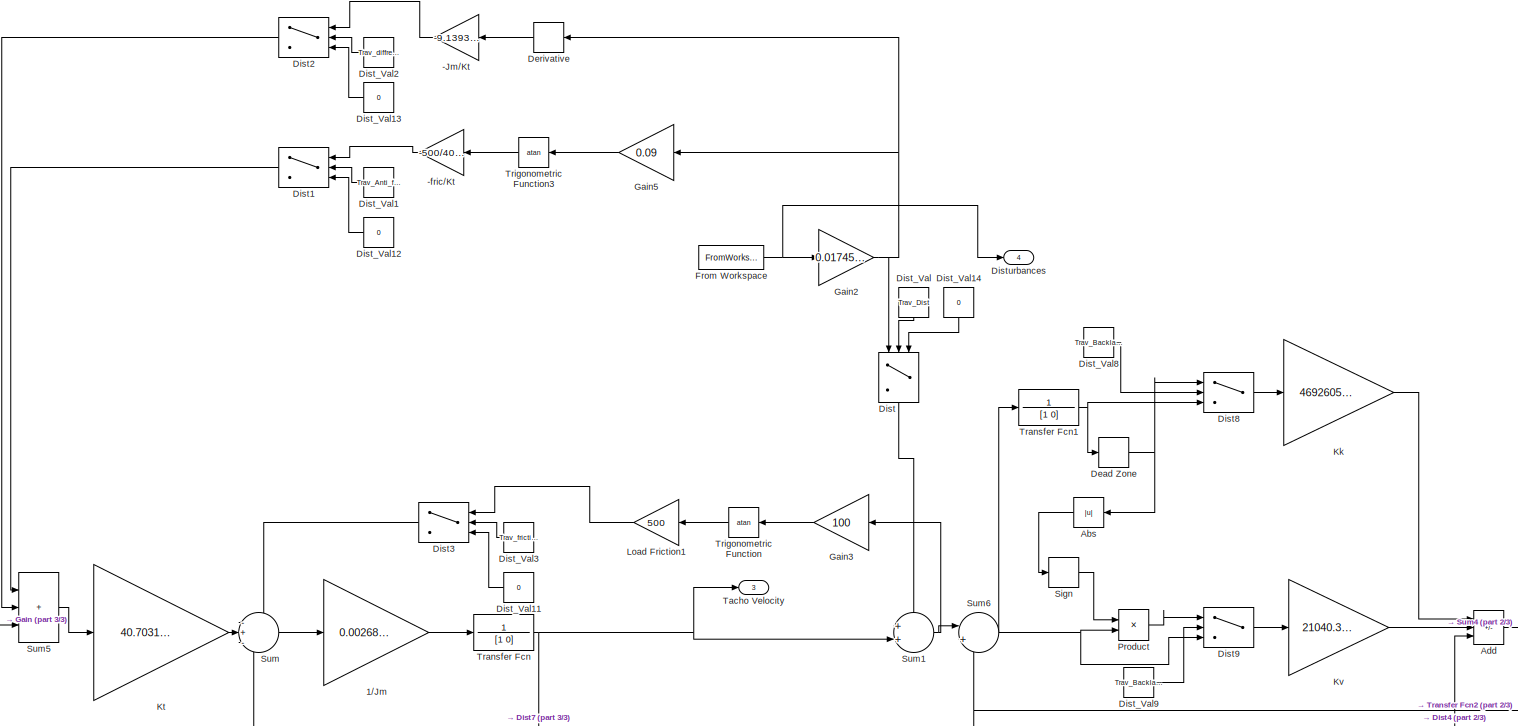
[diagram: Traverse - part 1/3, central region]
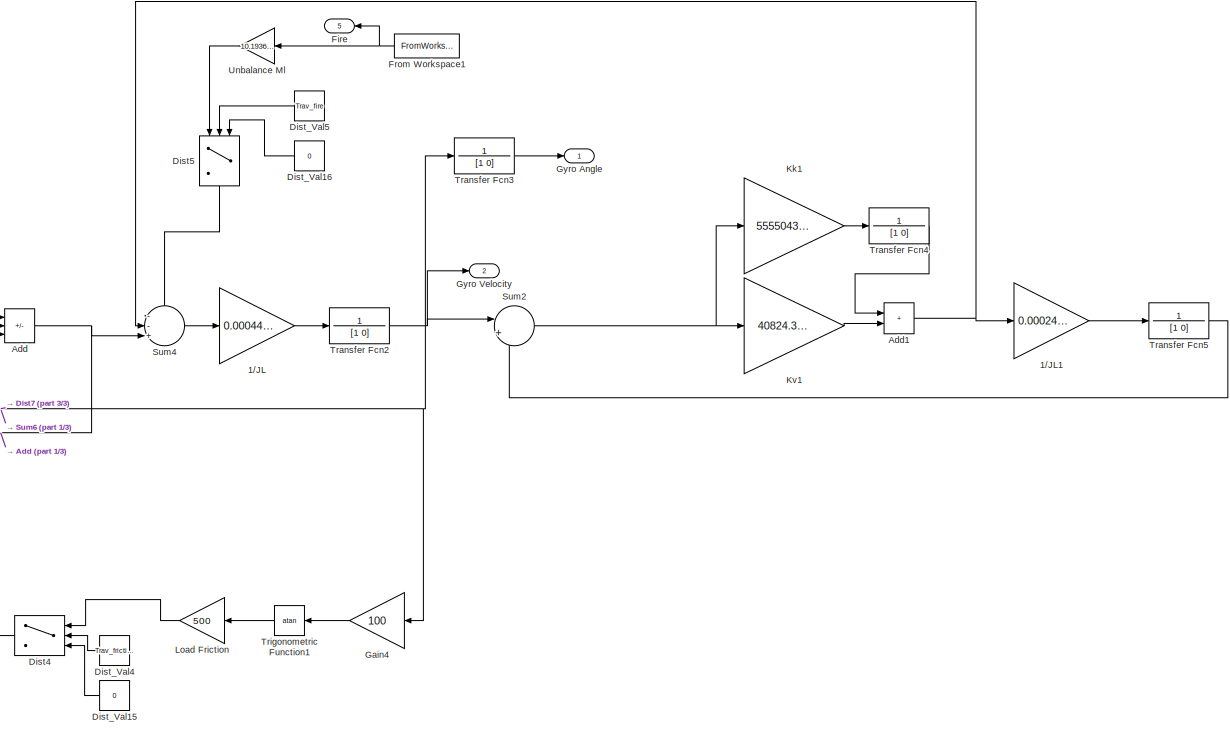
[diagram: Traverse - part 2/3, middle right region]
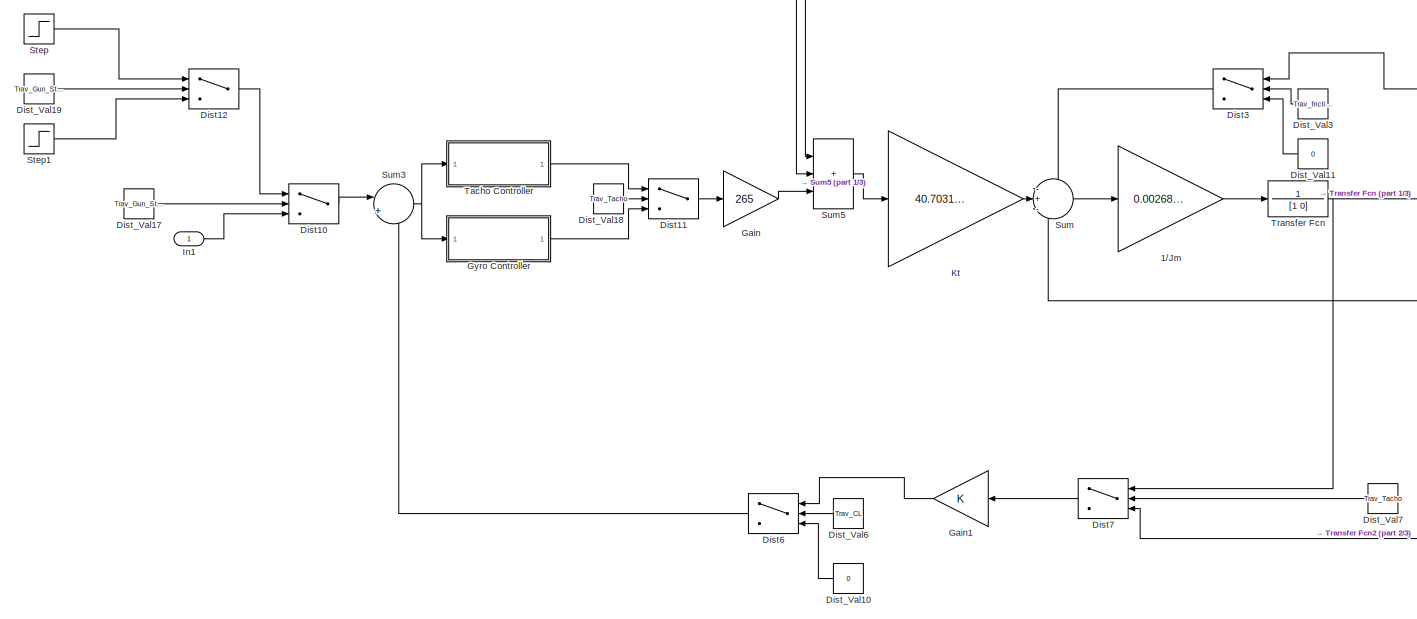
[diagram: Traverse - part 3/3, bottom left region]
BLOCK [SubSystem] Traverse
  Ports = [1, 5]
  RequestExecContextInheritance = off
BLOCK [Gain] Traverse/-Jm//Kt
  Gain = -9.13933192078897
BLOCK [Gain] Traverse/-fric//Kt
  Gain = -500/40.7031939778686
BLOCK [Gain] Traverse/1//JL
  Gain = 0.000444444444444444
BLOCK [Gain] Traverse/1//JL1
  Gain = 0.000244444444444444
BLOCK [Gain] Traverse/1//Jm
  Gain = 0.00268817204301075
BLOCK [Abs] Traverse/Abs
  SaturateOnIntegerOverflow = off
BLOCK [Sum] Traverse/Add
  IconShape = rectangular
  Inputs = ++-
  Ports = [3, 1]
BLOCK [Sum] Traverse/Add1
  IconShape = rectangular
  Ports = [2, 1]
BLOCK [DeadZone] Traverse/Dead Zone
  LowerValue = -0.11e-3
  UpperValue = 0.11e-3
BLOCK [Derivative] Traverse/Derivative
BLOCK [Switch] Traverse/Dist
  Criteria = u2 > Threshold
  InputSameDT = off
  NameLocation = left
  SaturateOnIntegerOverflow = off
BLOCK [Switch] Traverse/Dist1
  Criteria = u2 > Threshold
  InputSameDT = off
  NameLocation = top
  SaturateOnIntegerOverflow = off
BLOCK [Switch] Traverse/Dist10
  Criteria = u2 > Threshold
  InputSameDT = off
  NameLocation = top
  SaturateOnIntegerOverflow = off
BLOCK [Switch] Traverse/Dist11
  Criteria = u2 > Threshold
  InputSameDT = off
  NameLocation = top
  SaturateOnIntegerOverflow = off
BLOCK [Switch] Traverse/Dist12
  Criteria = u2 > Threshold
  InputSameDT = off
  NameLocation = top
  SaturateOnIntegerOverflow = off
BLOCK [Switch] Traverse/Dist2
  Criteria = u2 > Threshold
  InputSameDT = off
  NameLocation = top
  SaturateOnIntegerOverflow = off
BLOCK [Switch] Traverse/Dist3
  Criteria = u2 > Threshold
  InputSameDT = off
  NameLocation = top
  SaturateOnIntegerOverflow = off
BLOCK [Switch] Traverse/Dist4
  Criteria = u2 > Threshold
  InputSameDT = off
  NameLocation = top
  SaturateOnIntegerOverflow = off
BLOCK [Switch] Traverse/Dist5
  Criteria = u2 > Threshold
  InputSameDT = off
  NameLocation = left
  SaturateOnIntegerOverflow = off
BLOCK [Switch] Traverse/Dist6
  Criteria = u2 > Threshold
  InputSameDT = off
  NameLocation = top
  SaturateOnIntegerOverflow = off
BLOCK [Switch] Traverse/Dist7
  Criteria = u2 > Threshold
  InputSameDT = off
  NameLocation = top
  SaturateOnIntegerOverflow = off
BLOCK [Switch] Traverse/Dist8
  Criteria = u2 > Threshold
  InputSameDT = off
  NameLocation = top
  SaturateOnIntegerOverflow = off
BLOCK [Switch] Traverse/Dist9
  Criteria = u2 > Threshold
  InputSameDT = off
  NameLocation = top
  SaturateOnIntegerOverflow = off
BLOCK [Constant] Traverse/Dist_Val
  NameLocation = left
  Value = Trav_Dist
BLOCK [Constant] Traverse/Dist_Val1
  NameLocation = top
  Value = Trav_Anti_friction
BLOCK [Constant] Traverse/Dist_Val10
  NameLocation = top
  Value = 0
BLOCK [Constant] Traverse/Dist_Val11
  NameLocation = top
  Value = 0
BLOCK [Constant] Traverse/Dist_Val12
  NameLocation = top
  Value = 0
BLOCK [Constant] Traverse/Dist_Val13
  NameLocation = top
  Value = 0
BLOCK [Constant] Traverse/Dist_Val14
  NameLocation = left
  Value = 0
BLOCK [Constant] Traverse/Dist_Val15
  NameLocation = top
  Value = 0
BLOCK [Constant] Traverse/Dist_Val16
  NameLocation = top
  Value = 0
BLOCK [Constant] Traverse/Dist_Val17
  NameLocation = top
  Value = Trav_Gun_Step
BLOCK [Constant] Traverse/Dist_Val18
  NameLocation = top
  Value = Trav_Tacho
BLOCK [Constant] Traverse/Dist_Val19
  NameLocation = top
  Value = Trav_Gun_Step_1_or_0_05
BLOCK [Constant] Traverse/Dist_Val2
  NameLocation = top
  Value = Trav_diffrentiator
BLOCK [Constant] Traverse/Dist_Val3
  NameLocation = top
  Value = Trav_friction
BLOCK [Constant] Traverse/Dist_Val4
  NameLocation = top
  Value = Trav_friction
BLOCK [Constant] Traverse/Dist_Val5
  NameLocation = top
  Value = Trav_fire
BLOCK [Constant] Traverse/Dist_Val6
  NameLocation = top
  Value = Trav_CL
BLOCK [Constant] Traverse/Dist_Val7
  NameLocation = top
  Value = Trav_Tacho
BLOCK [Constant] Traverse/Dist_Val8
  NameLocation = top
  Value = Trav_Backlash
BLOCK [Constant] Traverse/Dist_Val9
  NameLocation = top
  Value = Trav_Backlash
BLOCK [Outport] Traverse/Disturbances
  Port = 4
BLOCK [Outport] Traverse/Fire
  Port = 5
BLOCK [FromWorkspace] Traverse/From Workspace
  OutputAfterFinalValue = Setting to zero
  VariableName = trdist
BLOCK [FromWorkspace] Traverse/From Workspace1
  OutputAfterFinalValue = Setting to zero
  VariableName = firegy
BLOCK [Gain] Traverse/Gain
  Gain = 265
BLOCK [Gain] Traverse/Gain1
BLOCK [Gain] Traverse/Gain2
  Gain = 0.0174532925199433
BLOCK [Gain] Traverse/Gain3
  Gain = 100
BLOCK [Gain] Traverse/Gain4
  Gain = 100
BLOCK [Gain] Traverse/Gain5
  Gain = 0.09
BLOCK [Outport] Traverse/Gyro Angle
BLOCK [SubSystem] Traverse/Gyro Controller
  Ports = [1, 1]
  RequestExecContextInheritance = off
BLOCK [Gain] Traverse/Gyro Controller/Gain
  Gain = 19.708
BLOCK [Gain] Traverse/Gyro Controller/Gain1
  Gain = 20.494
BLOCK [Inport] Traverse/Gyro Controller/In1
BLOCK [TransferFcn] Traverse/Gyro Controller/Notch filter
  Denominator = [1 19.43 7233]
  Numerator = [1 10.25 7233]
BLOCK [TransferFcn] Traverse/Gyro Controller/Notch filter1
  Denominator = [1 36.29 3.892e4]
  Numerator = [1 8.165 3.892e4]
BLOCK [Outport] Traverse/Gyro Controller/Out1
BLOCK [TransferFcn] Traverse/Gyro Controller/Transfer Fcn
  Denominator = [1 16.68]
  Numerator = [1 49.55]
BLOCK [TransferFcn] Traverse/Gyro Controller/Transfer Fcn1
  Denominator = [1 0]
  Numerator = [1 1.71]
BLOCK [TransferFcn] Traverse/Gyro Controller/Transfer Fcn2
  Denominator = [1 36.29 3.892e4]
  Numerator = [1 8.165 3.892e4]
BLOCK [TransferFcn] Traverse/Gyro Controller/Transfer Fcn3
  Denominator = [1 17.41]
  Numerator = [1 49.55]
BLOCK [TransferFcn] Traverse/Gyro Controller/Transfer Fcn4
  Denominator = [1 0]
  Numerator = [1 0.000171]
BLOCK [TransferFcn] Traverse/Gyro Controller/Transfer Fcn5
  Denominator = [1 19.52 7302]
  Numerator = [1 9.782 7302]
BLOCK [Outport] Traverse/Gyro Velocity
  Port = 2
BLOCK [Inport] Traverse/In1
BLOCK [Gain] Traverse/Kk
  Gain = 4692605.90333333
BLOCK [Gain] Traverse/Kk1
  Gain = 55550434.7826087
BLOCK [Gain] Traverse/Kt
  Gain = 40.7031939778686
BLOCK [Gain] Traverse/Kv
  Gain = 21040.3047022222
BLOCK [Gain] Traverse/Kv1
  Gain = 40824.375
BLOCK [Gain] Traverse/Load Friction
  Gain = 500
BLOCK [Gain] Traverse/Load Friction1
  Gain = 500
BLOCK [Product] Traverse/Product
  Ports = [2, 1]
BLOCK [Signum] Traverse/Sign
BLOCK [Step] Traverse/Step
  SampleTime = 0
BLOCK [Step] Traverse/Step1
  After = 0.05
  SampleTime = 0
BLOCK [Sum] Traverse/Sum
  Inputs = -+-
  Ports = [3, 1]
BLOCK [Sum] Traverse/Sum1
  Inputs = ++|
  NameLocation = top
  Ports = [2, 1]
BLOCK [Sum] Traverse/Sum2
  Inputs = |+-
  NameLocation = top
  Ports = [2, 1]
BLOCK [Sum] Traverse/Sum3
  Inputs = |+-
  Ports = [2, 1]
BLOCK [Sum] Traverse/Sum4
  Inputs = --+||
  NameLocation = top
  Ports = [3, 1]
BLOCK [Sum] Traverse/Sum5
  IconShape = rectangular
  Inputs = +++
  Ports = [3, 1]
BLOCK [Sum] Traverse/Sum6
  Inputs = |+-
  NameLocation = top
  Ports = [2, 1]
BLOCK [SubSystem] Traverse/Tacho Controller
  Ports = [1, 1]
  RequestExecContextInheritance = off
BLOCK [Gain] Traverse/Tacho Controller/Gain
  Gain = 28.117
BLOCK [Inport] Traverse/Tacho Controller/In1
BLOCK [Outport] Traverse/Tacho Controller/Out1
BLOCK [TransferFcn] Traverse/Tacho Controller/Transfer Fcn
  Denominator = [1 80.27 1.322e4]
  Numerator = [1 20.07 1.322e4]
BLOCK [TransferFcn] Traverse/Tacho Controller/Transfer Fcn1
  Denominator = [1 2*0.4*2*pi*4.24 (2*pi*4.24)^2]
  Numerator = [1 2*0.1*2*pi*4.24 (2*pi*4.24)^2]
BLOCK [TransferFcn] Traverse/Tacho Controller/Transfer Fcn2
  Denominator = [1 31.36]
  Numerator = [1 14.31]
BLOCK [TransferFcn] Traverse/Tacho Controller/Transfer Fcn3
  Denominator = [1 40.5]
  Numerator = [1 359.4]
BLOCK [TransferFcn] Traverse/Tacho Controller/Transfer Fcn4
  Denominator = [1 0]
  Numerator = [1 0.0001]
BLOCK [Outport] Traverse/Tacho Velocity
  Port = 3
BLOCK [TransferFcn] Traverse/Transfer Fcn
  Denominator = [1 0]
  Numerator = 1
BLOCK [TransferFcn] Traverse/Transfer Fcn1
  Denominator = [1 0]
  Numerator = 1
BLOCK [TransferFcn] Traverse/Transfer Fcn2
  Denominator = [1 0]
  Numerator = 1
BLOCK [TransferFcn] Traverse/Transfer Fcn3
  Denominator = [1 0]
  Numerator = 1
BLOCK [TransferFcn] Traverse/Transfer Fcn4
  Denominator = [1 0]
  Numerator = 1
BLOCK [TransferFcn] Traverse/Transfer Fcn5
  Denominator = [1 0]
  Numerator = 1
BLOCK [Trigonometry] Traverse/Trigonometric Function
  Operator = atan
  Ports = [1, 1]
BLOCK [Trigonometry] Traverse/Trigonometric Function1
  Operator = atan
  Ports = [1, 1]
BLOCK [Trigonometry] Traverse/Trigonometric Function3
  Operator = atan
  Ports = [1, 1]
BLOCK [Gain] Traverse/Unbalance Ml
  Gain = 10.1936799184506
ANNOTATION (root): Elevation
ANNOTATION (root): Traverse
ANNOTATION GUI: Add Anti Friction? Add differentiator?
ANNOTATION GUI: Add Backlash?
ANNOTATION GUI: Add Feedforward technique?
ANNOTATION GUI: Add Fire Recoil & Unbalance?
ANNOTATION GUI: Add Friction?
ANNOTATION GUI: Add Ground Disturbances?
ANNOTATION GUI: Connect Pod?
ANNOTATION GUI: Disturbances Scope
ANNOTATION GUI: Fire recoil Scope
ANNOTATION GUI: Ground Disturbances are controlled in the GUN controller
ANNOTATION GUI: Ground Disturbances, Fire Recoil and Gun & Pod Angles Scope
ANNOTATION GUI: Gyro Angle Scope
ANNOTATION GUI: Gyro Velocity Scope
ANNOTATION GUI: Insert Input or nothing?
ANNOTATION GUI: Insert Step or external input?
ANNOTATION GUI: Insert Tracking input or step?
ANNOTATION GUI: Insert step with final value of 1 or 0.05?
ANNOTATION GUI: Set Closed loop? Using Tacho or Gyro?
ANNOTATION GUI: Tacho Velocity Scope
ANNOTATION GUI: Tracking Error Angle Scope
ANNOTATION GUI: NOTE - all the steps inputs start from 1sec
ANNOTATION GUI: -Elevation Tracking error vs Traverse Tracking error -Shows last 15 seconds -Pops automatically on run -Simulation is faster when closed
ANNOTATION GUI: GUN
ANNOTATION GUI: POD
ANNOTATION GUI: TRACKING
ANNOTATION GUI: Elevation
ANNOTATION GUI: Traverse
LINE Dist10:1 -> Dist5:1
LINE Dist12:1 -> Dist10:3
LINE Dist1:1 -> Elevation:1
LINE Dist2:1 -> Traverse:1
LINE Dist3:1 -> Dist6:1
LINE Dist4:1 -> Dist3:3
NET Dist5:1 -> GUI:19, Position Controller1:1
NET Dist6:1 -> GUI:20, Position Controller3:1
LINE Dist_Val10:1 -> Dist5:3
LINE Dist_Val17:1 -> Dist10:2
LINE Dist_Val19:1 -> Dist12:2
LINE Dist_Val1:1 -> Dist1:2
LINE Dist_Val2:1 -> Dist2:2
LINE Dist_Val3:1 -> Dist3:2
LINE Dist_Val4:1 -> Dist4:2
LINE Dist_Val5:1 -> Dist5:2
LINE Dist_Val6:1 -> Dist1:3
LINE Dist_Val7:1 -> Dist2:3
LINE Dist_Val8:1 -> Dist6:3
LINE Dist_Val9:1 -> Dist6:2
LINE Elevation/-Jm//Kt:1 -> Elevation/Dist2:1
LINE Elevation/1//JL1:1 -> Elevation/Transfer Fcn5:1
LINE Elevation/1//JL:1 -> Elevation/Transfer Fcn2:1
LINE Elevation/1//Jm:1 -> Elevation/Transfer Fcn:1
LINE Elevation/Abs:1 -> Elevation/Sign:1
NET Elevation/Add1:1 -> Elevation/1//JL1:1, Elevation/Sum2:2
NET Elevation/Add:1 -> Elevation/Sum2:3, Elevation/Sum:3
NET Elevation/Dead Zone:1 -> Elevation/Abs:1, Elevation/Dist8:1
LINE Elevation/Derivative:1 -> Elevation/-Jm//Kt:1
LINE Elevation/Dist10:1 -> Elevation/Sum4:1
LINE Elevation/Dist11:1 -> Elevation/Gain:1
LINE Elevation/Dist12:1 -> Elevation/Dist10:1
LINE Elevation/Dist1:1 -> Elevation/Sum5:1
LINE Elevation/Dist2:1 -> Elevation/Sum5:2
LINE Elevation/Dist3:1 -> Elevation/Sum:1
LINE Elevation/Dist4:1 -> Elevation/Add:3
LINE Elevation/Dist5:1 -> Elevation/Sum2:1
LINE Elevation/Dist6:1 -> Elevation/Sum4:2
LINE Elevation/Dist7:1 -> Elevation/Gain1:1
LINE Elevation/Dist8:1 -> Elevation/Kk:1
LINE Elevation/Dist9:1 -> Elevation/Kv:1
LINE Elevation/Dist:1 -> Elevation/Sum8:1
LINE Elevation/Dist_Val10:1 -> Elevation/Dist6:3
LINE Elevation/Dist_Val11:1 -> Elevation/Dist3:3
LINE Elevation/Dist_Val12:1 -> Elevation/Dist1:3
LINE Elevation/Dist_Val13:1 -> Elevation/Dist2:3
LINE Elevation/Dist_Val14:1 -> Elevation/Dist:3
LINE Elevation/Dist_Val15:1 -> Elevation/Dist4:3
LINE Elevation/Dist_Val16:1 -> Elevation/Dist5:3
LINE Elevation/Dist_Val17:1 -> Elevation/Dist10:2
LINE Elevation/Dist_Val18:1 -> Elevation/Dist11:2
LINE Elevation/Dist_Val19:1 -> Elevation/Dist12:2
LINE Elevation/Dist_Val1:1 -> Elevation/Dist1:2
LINE Elevation/Dist_Val2:1 -> Elevation/Dist2:2
LINE Elevation/Dist_Val3:1 -> Elevation/Dist3:2
LINE Elevation/Dist_Val4:1 -> Elevation/Dist4:2
LINE Elevation/Dist_Val5:1 -> Elevation/Dist5:2
LINE Elevation/Dist_Val6:1 -> Elevation/Dist6:2
LINE Elevation/Dist_Val7:1 -> Elevation/Dist7:2
LINE Elevation/Dist_Val8:1 -> Elevation/Dist8:2
LINE Elevation/Dist_Val9:1 -> Elevation/Dist9:2
LINE Elevation/Dist_Val:1 -> Elevation/Dist:2
NET Elevation/From Workspace1:1 -> Elevation/Fire:1, Elevation/Unbalance Ml:1
NET Elevation/From Workspace:1 -> Elevation/Disturbances:1, Elevation/Gain2:1
LINE Elevation/Gain1:1 -> Elevation/Dist6:1
NET Elevation/Gain2:1 -> Elevation/Derivative:1, Elevation/Dist:1, Elevation/Gain4:1
LINE Elevation/Gain3:1 -> Elevation/Trigonometric Function:1
LINE Elevation/Gain4:1 -> Elevation/Trigonometric Function1:1
LINE Elevation/Gain5:1 -> Elevation/Trigonometric Function2:1
LINE Elevation/Gain:1 -> Elevation/Sum5:3
LINE Elevation/Gyro Controller/Gain for match without pi:1 -> Elevation/Gyro Controller/Transfer Fcn3:1
LINE Elevation/Gyro Controller/Gain:1 -> Elevation/Gyro Controller/Transfer Fcn:1
LINE Elevation/Gyro Controller/In1:1 -> Elevation/Gyro Controller/Gain for match without pi:1
LINE Elevation/Gyro Controller/Transfer Fcn1:1 -> Elevation/Gyro Controller/Out1:1
LINE Elevation/Gyro Controller/Transfer Fcn2:1 -> Elevation/Gyro Controller/Transfer Fcn7:1
LINE Elevation/Gyro Controller/Transfer Fcn3:1 -> Elevation/Gyro Controller/Transfer Fcn2:1
LINE Elevation/Gyro Controller/Transfer Fcn7:1 -> Elevation/Gyro Controller/Gain:1
LINE Elevation/Gyro Controller/Transfer Fcn:1 -> Elevation/Gyro Controller/Transfer Fcn1:1
LINE Elevation/Gyro Controller:1 -> Elevation/Dist11:3
LINE Elevation/In1:1 -> Elevation/Dist10:3
LINE Elevation/Kk1:1 -> Elevation/Transfer Fcn4:1
LINE Elevation/Kk:1 -> Elevation/Add:1
LINE Elevation/Kt:1 -> Elevation/Sum:2
LINE Elevation/Kv1:1 -> Elevation/Add1:2
LINE Elevation/Kv:1 -> Elevation/Add:2
LINE Elevation/Load Friction1:1 -> Elevation/Dist3:1
LINE Elevation/Load Friction3:1 -> Elevation/Dist1:1
LINE Elevation/Load Friction4:1 -> Elevation/Dist4:1
LINE Elevation/Product:1 -> Elevation/Dist9:1
LINE Elevation/Sign:1 -> Elevation/Product:1
LINE Elevation/Step1:1 -> Elevation/Dist12:3
LINE Elevation/Step:1 -> Elevation/Dist12:1
NET Elevation/Sum1:1 -> Elevation/Dist9:3, Elevation/Product:2, Elevation/Transfer Fcn1:1
LINE Elevation/Sum2:1 -> Elevation/1//JL:1
NET Elevation/Sum3:1 -> Elevation/Kk1:1, Elevation/Kv1:1
NET Elevation/Sum4:1 -> Elevation/Gyro Controller:1, Elevation/Tacho controller:1
LINE Elevation/Sum5:1 -> Elevation/Kt:1
NET Elevation/Sum8:1 -> Elevation/Gain3:1, Elevation/Sum1:1
LINE Elevation/Sum:1 -> Elevation/1//Jm:1
LINE Elevation/Tacho controller/In1:1 -> Elevation/Tacho controller/Transfer Fcn4:1
LINE Elevation/Tacho controller/Transfer Fcn2:1 -> Elevation/Tacho controller/a5:1
LINE Elevation/Tacho controller/Transfer Fcn4:1 -> Elevation/Tacho controller/Transfer Fcn2:1
LINE Elevation/Tacho controller/Transfer Fcn5:1 -> Elevation/Tacho controller/Out1:1
LINE Elevation/Tacho controller/a5:1 -> Elevation/Tacho controller/Transfer Fcn5:1
LINE Elevation/Tacho controller:1 -> Elevation/Dist11:1
NET Elevation/Transfer Fcn1:1 -> Elevation/Dead Zone:1, Elevation/Dist8:3
NET Elevation/Transfer Fcn2:1 -> Elevation/Dist7:3, Elevation/Gain5:1, Elevation/Gyro Velocity:1, Elevation/Sum1:2, Elevation/Sum3:1, Elevation/Transfer Fcn3:1
LINE Elevation/Transfer Fcn3:1 -> Elevation/Gyro Angle:1
LINE Elevation/Transfer Fcn4:1 -> Elevation/Add1:1
LINE Elevation/Transfer Fcn5:1 -> Elevation/Sum3:2
NET Elevation/Transfer Fcn:1 -> Elevation/Dist7:1, Elevation/Sum8:2, Elevation/Tacho Velocity:1
LINE Elevation/Trigonometric Function1:1 -> Elevation/Load Friction3:1
LINE Elevation/Trigonometric Function2:1 -> Elevation/Load Friction4:1
LINE Elevation/Trigonometric Function:1 -> Elevation/Load Friction1:1
LINE Elevation/Unbalance Ml:1 -> Elevation/Dist5:1
NET Elevation:1 -> GUI:1, Sum:1
LINE Elevation:2 -> GUI:2
LINE Elevation:3 -> GUI:3
LINE Elevation:4 -> GUI:4
LINE Elevation:5 -> GUI:5
LINE From Workspace1:1 -> Dist10:1
LINE From Workspace2:1 -> Dist3:1
LINE GUI/Elev Current Input:1 -> GUI/Elev Complete Scope:3
NET GUI/Elev Disturbances:1 -> GUI/Elev Complete Scope:1, GUI/Elev Disturbances Scope:1
NET GUI/Elev Fire:1 -> GUI/Elev Complete Scope:4, GUI/Elev Fire Scope:1
NET GUI/Elev Gun Gyro Angle:1 -> GUI/Elev Complete Scope:2, GUI/Elev Gun Gyro Angle Scope:1
LINE GUI/Elev Gun Gyro Velocity:1 -> GUI/Elev Gun Gyro Velocity Scope:1
LINE GUI/Elev Gun Tacho Velocity:1 -> GUI/Elev Gun Tacho Velocity Scope:1
NET GUI/Elev Pod Gyro Angle:1 -> GUI/Elev Complete Scope:5, GUI/Elev Pod Gyro Angle Scope:1
LINE GUI/Elev Pod Gyro Velocity:1 -> GUI/Elev Pod Gyro Velocity Scope:1
LINE GUI/Elev Pod Tacho Velocity:1 -> GUI/Elev Pod Tacho Velocity Scope:1
NET GUI/Elev Tracking error:1 -> GUI/Elev Complete Scope:6, GUI/Elev Tracking error angle:1, GUI/XY Graph:2
LINE GUI/Trav Current Input:1 -> GUI/Trav Complete Scope:3
NET GUI/Trav Disturbances:1 -> GUI/Trav Complete Scope:1, GUI/Trav Disturbances Scope:1
NET GUI/Trav Fire:1 -> GUI/Trav Complete Scope:4, GUI/Trav Fire Scope:1
NET GUI/Trav Gun Gyro Angle:1 -> GUI/Trav Complete Scope:2, GUI/Trav Gun Gyro Angle Scope:1
LINE GUI/Trav Gun Gyro Velocity:1 -> GUI/Trav Gun Gyro Velocity Scope:1
LINE GUI/Trav Gun Tacho Velocity:1 -> GUI/Trav Gun Tacho Velocity Scope:1
NET GUI/Trav Pod Gyro Angle:1 -> GUI/Trav Complete Scope:5, GUI/Trav Pod Gyro Angle Scope:1
LINE GUI/Trav Pod Gyro Velocity:1 -> GUI/Trav Pod Gyro Velocity Scope:1
LINE GUI/Trav Pod Tacho Velocity:1 -> GUI/Trav Pod Tacho Velocity Scope:1
NET GUI/Trav Tracking error:1 -> GUI/Trav Complete Scope:6, GUI/Trav Tracking error angle:1, GUI/XY Graph:1
LINE POD Elevation/1//JL1:1 -> POD Elevation/Transfer Fcn2:1
LINE POD Elevation/1//JL2:1 -> POD Elevation/Transfer Fcn5:1
LINE POD Elevation/1//JL3:1 -> POD Elevation/Transfer Fcn6:1
LINE POD Elevation/1//Jm:1 -> POD Elevation/Transfer Fcn:1
LINE POD Elevation/Abs:1 -> POD Elevation/Sign:1
NET POD Elevation/Add1:1 -> POD Elevation/Sum1:2, POD Elevation/Sum2:1
NET POD Elevation/Add2:1 -> POD Elevation/1//JL3:1, POD Elevation/Sum1:1
NET POD Elevation/Add:1 -> POD Elevation/Sum2:2, POD Elevation/Sum:3
NET POD Elevation/Dead Zone:1 -> POD Elevation/Abs:1, POD Elevation/Dist8:1
LINE POD Elevation/Dist10:1 -> POD Elevation/Sum7:1
LINE POD Elevation/Dist11:1 -> POD Elevation/Sum9:2
LINE POD Elevation/Dist12:1 -> POD Elevation/Dist10:1
LINE POD Elevation/Dist1:1 -> POD Elevation/Sum9:1
LINE POD Elevation/Dist2:1 -> POD Elevation/Sum:1
LINE POD Elevation/Dist4:1 -> POD Elevation/Add:3
LINE POD Elevation/Dist6:1 -> POD Elevation/Sum7:2
LINE POD Elevation/Dist7:1 -> POD Elevation/Gain1:1
LINE POD Elevation/Dist8:1 -> POD Elevation/Kk1:1
LINE POD Elevation/Dist9:1 -> POD Elevation/Kv1:1
LINE POD Elevation/Dist:1 -> POD Elevation/Sum8:1
LINE POD Elevation/Dist_Val10:1 -> POD Elevation/Dist6:3
LINE POD Elevation/Dist_Val12:1 -> POD Elevation/Dist1:3
LINE POD Elevation/Dist_Val15:1 -> POD Elevation/Dist4:3
LINE POD Elevation/Dist_Val17:1 -> POD Elevation/Dist10:2
LINE POD Elevation/Dist_Val18:1 -> POD Elevation/Dist11:2
LINE POD Elevation/Dist_Val19:1 -> POD Elevation/Dist12:2
LINE POD Elevation/Dist_Val1:1 -> POD Elevation/Dist1:2
LINE POD Elevation/Dist_Val2:1 -> POD Elevation/Dist2:3
LINE POD Elevation/Dist_Val3:1 -> POD Elevation/Dist2:2
LINE POD Elevation/Dist_Val4:1 -> POD Elevation/Dist4:2
LINE POD Elevation/Dist_Val5:1 -> POD Elevation/Dist:3
LINE POD Elevation/Dist_Val6:1 -> POD Elevation/Dist6:2
LINE POD Elevation/Dist_Val7:1 -> POD Elevation/Dist7:2
LINE POD Elevation/Dist_Val8:1 -> POD Elevation/Dist8:2
LINE POD Elevation/Dist_Val9:1 -> POD Elevation/Dist9:2
LINE POD Elevation/Dist_Val:1 -> POD Elevation/Dist:2
LINE POD Elevation/From Workspace:1 -> POD Elevation/Gain2:1
LINE POD Elevation/Gain1:1 -> POD Elevation/Dist6:1
NET POD Elevation/Gain2:1 -> POD Elevation/Dist:1, POD Elevation/Subtract:1, POD Elevation/Zero-Order Hold:1
LINE POD Elevation/Gain3:1 -> POD Elevation/Trigonometric Function:1
LINE POD Elevation/Gain5:1 -> POD Elevation/Trigonometric Function2:1
LINE POD Elevation/In1:1 -> POD Elevation/Dist10:3
LINE POD Elevation/Kk1:1 -> POD Elevation/Add:1
LINE POD Elevation/Kk2:1 -> POD Elevation/Transfer Fcn4:1
LINE POD Elevation/Kk3:1 -> POD Elevation/Transfer Fcn3:1
LINE POD Elevation/Kt:1 -> POD Elevation/Sum:2
LINE POD Elevation/Kv1:1 -> POD Elevation/Add:2
LINE POD Elevation/Kv2:1 -> POD Elevation/Add1:2
LINE POD Elevation/Kv3:1 -> POD Elevation/Add2:2
LINE POD Elevation/Load Friction1:1 -> POD Elevation/Dist2:1
LINE POD Elevation/Load Friction2:1 -> POD Elevation/Dist1:1
LINE POD Elevation/Load Friction:1 -> POD Elevation/Dist4:1
LINE POD Elevation/Product:1 -> POD Elevation/Dist9:1
LINE POD Elevation/Sign:1 -> POD Elevation/Product:1
LINE POD Elevation/Step1:1 -> POD Elevation/Dist12:3
LINE POD Elevation/Step:1 -> POD Elevation/Dist12:1
LINE POD Elevation/Subsystem/Gyro1:1 -> POD Elevation/Subsystem/Out1:1
LINE POD Elevation/Subsystem/Gyro:1 -> POD Elevation/Subsystem/Transfer Fcn:1
LINE POD Elevation/Subsystem/In1:1 -> POD Elevation/Subsystem/Gyro:1
LINE POD Elevation/Subsystem/Transfer Fcn1:1 -> POD Elevation/Subsystem/Transfer Fcn4:1
LINE POD Elevation/Subsystem/Transfer Fcn3:1 -> POD Elevation/Subsystem/Gyro1:1
LINE POD Elevation/Subsystem/Transfer Fcn4:1 -> POD Elevation/Subsystem/Transfer Fcn3:1
LINE POD Elevation/Subsystem/Transfer Fcn:1 -> POD Elevation/Subsystem/Transfer Fcn1:1
LINE POD Elevation/Subsystem1/Gyro1:1 -> POD Elevation/Subsystem1/Out1:1
LINE POD Elevation/Subsystem1/Gyro:1 -> POD Elevation/Subsystem1/Transfer Fcn1:1
LINE POD Elevation/Subsystem1/In1:1 -> POD Elevation/Subsystem1/Gyro:1
LINE POD Elevation/Subsystem1/Transfer Fcn1:1 -> POD Elevation/Subsystem1/Transfer Fcn3:1
LINE POD Elevation/Subsystem1/Transfer Fcn3:1 -> POD Elevation/Subsystem1/Gyro1:1
LINE POD Elevation/Subsystem1:1 -> POD Elevation/Dist11:1
LINE POD Elevation/Subsystem:1 -> POD Elevation/Dist11:3
LINE POD Elevation/Subtract:1 -> POD Elevation/Load Friction2:1
LINE POD Elevation/Sum1:1 -> POD Elevation/1//JL2:1
LINE POD Elevation/Sum2:1 -> POD Elevation/1//JL1:1
NET POD Elevation/Sum3:1 -> POD Elevation/Kk2:1, POD Elevation/Kv2:1
NET POD Elevation/Sum5:1 -> POD Elevation/Kk3:1, POD Elevation/Kv3:1
NET POD Elevation/Sum6:1 -> POD Elevation/Dist9:3, POD Elevation/Product:2, POD Elevation/Transfer Fcn1:1
NET POD Elevation/Sum7:1 -> POD Elevation/Subsystem1:1, POD Elevation/Subsystem:1
NET POD Elevation/Sum8:1 -> POD Elevation/Gain3:1, POD Elevation/Sum6:1
LINE POD Elevation/Sum9:1 -> POD Elevation/Kt:1
LINE POD Elevation/Sum:1 -> POD Elevation/1//Jm:1
NET POD Elevation/Transfer Fcn1:1 -> POD Elevation/Dead Zone:1, POD Elevation/Dist8:3
NET POD Elevation/Transfer Fcn2:1 -> POD Elevation/Dist7:3, POD Elevation/Gain5:1, POD Elevation/Gyro Velocity:1, POD Elevation/Sum3:1, POD Elevation/Sum6:2, POD Elevation/Transfer Fcn7:1
LINE POD Elevation/Transfer Fcn3:1 -> POD Elevation/Add2:1
LINE POD Elevation/Transfer Fcn4:1 -> POD Elevation/Add1:1
NET POD Elevation/Transfer Fcn5:1 -> POD Elevation/Sum3:2, POD Elevation/Sum5:1
LINE POD Elevation/Transfer Fcn6:1 -> POD Elevation/Sum5:2
LINE POD Elevation/Transfer Fcn7:1 -> POD Elevation/Gyro Angle:1
NET POD Elevation/Transfer Fcn:1 -> POD Elevation/Dist7:1, POD Elevation/Sum8:2, POD Elevation/Tacho Velocity:1
LINE POD Elevation/Trigonometric Function2:1 -> POD Elevation/Load Friction:1
LINE POD Elevation/Trigonometric Function:1 -> POD Elevation/Load Friction1:1
LINE POD Elevation/Zero-Order Hold:1 -> POD Elevation/Subtract:2
NET POD Elevation:1 -> GUI:6, Sum:2
LINE POD Elevation:2 -> GUI:7
LINE POD Elevation:3 -> GUI:8
LINE POD Traverse/1//JL1:1 -> POD Traverse/Transfer Fcn2:1
LINE POD Traverse/1//JL2:1 -> POD Traverse/Transfer Fcn5:1
LINE POD Traverse/1//Jm:1 -> POD Traverse/Transfer Fcn:1
LINE POD Traverse/Abs:1 -> POD Traverse/Sign:1
NET POD Traverse/Add1:1 -> POD Traverse/1//JL2:1, POD Traverse/Sum2:1
NET POD Traverse/Add:1 -> POD Traverse/Sum2:2, POD Traverse/Sum:3
NET POD Traverse/Dead Zone:1 -> POD Traverse/Abs:1, POD Traverse/Dist8:1
LINE POD Traverse/Dist10:1 -> POD Traverse/Sum1:1
LINE POD Traverse/Dist11:1 -> POD Traverse/Sum5:2
LINE POD Traverse/Dist12:1 -> POD Traverse/Dist10:1
LINE POD Traverse/Dist1:1 -> POD Traverse/Sum5:1
LINE POD Traverse/Dist2:1 -> POD Traverse/Sum:1
LINE POD Traverse/Dist4:1 -> POD Traverse/Add:3
LINE POD Traverse/Dist6:1 -> POD Traverse/Sum1:2
LINE POD Traverse/Dist7:1 -> POD Traverse/Gain1:1
LINE POD Traverse/Dist8:1 -> POD Traverse/Kk1:1
LINE POD Traverse/Dist9:1 -> POD Traverse/Kv1:1
LINE POD Traverse/Dist:1 -> POD Traverse/Sum6:1
LINE POD Traverse/Dist_Val10:1 -> POD Traverse/Dist6:3
LINE POD Traverse/Dist_Val12:1 -> POD Traverse/Dist1:3
LINE POD Traverse/Dist_Val15:1 -> POD Traverse/Dist4:3
LINE POD Traverse/Dist_Val17:1 -> POD Traverse/Dist10:2
LINE POD Traverse/Dist_Val18:1 -> POD Traverse/Dist11:2
LINE POD Traverse/Dist_Val19:1 -> POD Traverse/Dist12:2
LINE POD Traverse/Dist_Val1:1 -> POD Traverse/Dist1:2
LINE POD Traverse/Dist_Val2:1 -> POD Traverse/Dist2:3
LINE POD Traverse/Dist_Val3:1 -> POD Traverse/Dist2:2
LINE POD Traverse/Dist_Val4:1 -> POD Traverse/Dist4:2
LINE POD Traverse/Dist_Val5:1 -> POD Traverse/Dist:3
LINE POD Traverse/Dist_Val6:1 -> POD Traverse/Dist6:2
LINE POD Traverse/Dist_Val7:1 -> POD Traverse/Dist7:2
LINE POD Traverse/Dist_Val8:1 -> POD Traverse/Dist8:2
LINE POD Traverse/Dist_Val9:1 -> POD Traverse/Dist9:2
LINE POD Traverse/Dist_Val:1 -> POD Traverse/Dist:2
LINE POD Traverse/From Workspace2:1 -> POD Traverse/Gain6:1
LINE POD Traverse/Gain1:1 -> POD Traverse/Dist6:1
LINE POD Traverse/Gain3:1 -> POD Traverse/Trigonometric Function:1
LINE POD Traverse/Gain4:1 -> POD Traverse/Trigonometric Function1:1
NET POD Traverse/Gain6:1 -> POD Traverse/Dist:1, POD Traverse/Subtract1:1, POD Traverse/Zero-Order Hold1:1
LINE POD Traverse/Gyro Controller/Gain:1 -> POD Traverse/Gyro Controller/Transfer Fcn1:1
LINE POD Traverse/Gyro Controller/Gyro for physical model:1 -> POD Traverse/Gyro Controller/Transfer Fcn3:1
LINE POD Traverse/Gyro Controller/In1:1 -> POD Traverse/Gyro Controller/Gyro for physical model:1
LINE POD Traverse/Gyro Controller/Notch filter:1 -> POD Traverse/Gyro Controller/Transfer Fcn2:1
LINE POD Traverse/Gyro Controller/Transfer Fcn1:1 -> POD Traverse/Gyro Controller/Transfer Fcn:1
LINE POD Traverse/Gyro Controller/Transfer Fcn2:1 -> POD Traverse/Gyro Controller/Transfer Fcn4:1
LINE POD Traverse/Gyro Controller/Transfer Fcn3:1 -> POD Traverse/Gyro Controller/Notch filter:1
LINE POD Traverse/Gyro Controller/Transfer Fcn4:1 -> POD Traverse/Gyro Controller/Gain:1
LINE POD Traverse/Gyro Controller/Transfer Fcn5:1 -> POD Traverse/Gyro Controller/Transfer Fcn6:1
LINE POD Traverse/Gyro Controller/Transfer Fcn6:1 -> POD Traverse/Gyro Controller/Transfer Fcn7:1
LINE POD Traverse/Gyro Controller/Transfer Fcn7:1 -> POD Traverse/Gyro Controller/Out1:1
LINE POD Traverse/Gyro Controller/Transfer Fcn:1 -> POD Traverse/Gyro Controller/Transfer Fcn5:1
LINE POD Traverse/Gyro Controller:1 -> POD Traverse/Dist11:3
LINE POD Traverse/In1:1 -> POD Traverse/Dist10:3
LINE POD Traverse/Kk1:1 -> POD Traverse/Add:1
LINE POD Traverse/Kk2:1 -> POD Traverse/Transfer Fcn4:1
LINE POD Traverse/Kt:1 -> POD Traverse/Sum:2
LINE POD Traverse/Kv1:1 -> POD Traverse/Add:2
LINE POD Traverse/Kv2:1 -> POD Traverse/Add1:2
LINE POD Traverse/Load Friction1:1 -> POD Traverse/Dist2:1
LINE POD Traverse/Load Friction2:1 -> POD Traverse/Dist1:1
LINE POD Traverse/Load Friction:1 -> POD Traverse/Dist4:1
LINE POD Traverse/Product:1 -> POD Traverse/Dist9:1
LINE POD Traverse/Sign:1 -> POD Traverse/Product:1
LINE POD Traverse/Step1:1 -> POD Traverse/Dist12:3
LINE POD Traverse/Step:1 -> POD Traverse/Dist12:1
LINE POD Traverse/Subtract1:1 -> POD Traverse/Load Friction2:1
NET POD Traverse/Sum1:1 -> POD Traverse/Gyro Controller:1, POD Traverse/Tacho Controller:1
LINE POD Traverse/Sum2:1 -> POD Traverse/1//JL1:1
NET POD Traverse/Sum3:1 -> POD Traverse/Kk2:1, POD Traverse/Kv2:1
NET POD Traverse/Sum4:1 -> POD Traverse/Dist9:3, POD Traverse/Product:2, POD Traverse/Transfer Fcn1:1
LINE POD Traverse/Sum5:1 -> POD Traverse/Kt:1
NET POD Traverse/Sum6:1 -> POD Traverse/Gain3:1, POD Traverse/Sum4:1
LINE POD Traverse/Sum:1 -> POD Traverse/1//Jm:1
LINE POD Traverse/Tacho Controller/Gain for physical fit:1 -> POD Traverse/Tacho Controller/Gain:1
LINE POD Traverse/Tacho Controller/Gain:1 -> POD Traverse/Tacho Controller/Transfer Fcn:1
LINE POD Traverse/Tacho Controller/In1:1 -> POD Traverse/Tacho Controller/Gain for physical fit:1
LINE POD Traverse/Tacho Controller/Transfer Fcn1:1 -> POD Traverse/Tacho Controller/Transfer Fcn2:1
LINE POD Traverse/Tacho Controller/Transfer Fcn2:1 -> POD Traverse/Tacho Controller/Out1:1
LINE POD Traverse/Tacho Controller/Transfer Fcn:1 -> POD Traverse/Tacho Controller/Transfer Fcn1:1
LINE POD Traverse/Tacho Controller:1 -> POD Traverse/Dist11:1
NET POD Traverse/Transfer Fcn1:1 -> POD Traverse/Dead Zone:1, POD Traverse/Dist8:3
NET POD Traverse/Transfer Fcn2:1 -> POD Traverse/Dist7:3, POD Traverse/Gain4:1, POD Traverse/Gyro Velocity:1, POD Traverse/Sum3:1, POD Traverse/Sum4:2, POD Traverse/Transfer Fcn6:1
LINE POD Traverse/Transfer Fcn4:1 -> POD Traverse/Add1:1
LINE POD Traverse/Transfer Fcn5:1 -> POD Traverse/Sum3:2
LINE POD Traverse/Transfer Fcn6:1 -> POD Traverse/Gyro Angle:1
NET POD Traverse/Transfer Fcn:1 -> POD Traverse/Dist7:1, POD Traverse/Sum6:2, POD Traverse/Tacho Velocity:1
LINE POD Traverse/Trigonometric Function1:1 -> POD Traverse/Load Friction:1
LINE POD Traverse/Trigonometric Function:1 -> POD Traverse/Load Friction1:1
LINE POD Traverse/Zero-Order Hold1:1 -> POD Traverse/Subtract1:2
NET POD Traverse:1 -> GUI:16, Sum1:2
LINE POD Traverse:2 -> GUI:17
LINE POD Traverse:3 -> GUI:18
LINE Position Controller/Gain:1 -> Position Controller/Transfer Fcn5:1
LINE Position Controller/In1:1 -> Position Controller/Gain:1
LINE Position Controller/Transfer Fcn1:1 -> Position Controller/Transfer Fcn3:1
LINE Position Controller/Transfer Fcn2:1 -> Position Controller/Transfer Fcn1:1
LINE Position Controller/Transfer Fcn3:1 -> Position Controller/Transfer Fcn6:1
LINE Position Controller/Transfer Fcn4:1 -> Position Controller/Out1:1
LINE Position Controller/Transfer Fcn5:1 -> Position Controller/Transfer Fcn2:1
LINE Position Controller/Transfer Fcn6:1 -> Position Controller/Transfer Fcn4:1
LINE Position Controller1/Gain:1 -> Position Controller1/Transfer Fcn5:1
LINE Position Controller1/In1:1 -> Position Controller1/Gain:1
LINE Position Controller1/Transfer Fcn1:1 -> Position Controller1/Out1:1
LINE Position Controller1/Transfer Fcn2:1 -> Position Controller1/Transfer Fcn3:1
LINE Position Controller1/Transfer Fcn3:1 -> Position Controller1/Transfer Fcn6:1
LINE Position Controller1/Transfer Fcn5:1 -> Position Controller1/Transfer Fcn2:1
LINE Position Controller1/Transfer Fcn6:1 -> Position Controller1/Transfer Fcn1:1
LINE Position Controller1:1 -> POD Elevation:1
LINE Position Controller2/Gain:1 -> Position Controller2/Transfer Fcn:1
LINE Position Controller2/In1:1 -> Position Controller2/Gain:1
LINE Position Controller2/Transfer Fcn1:1 -> Position Controller2/Out1:1
LINE Position Controller2/Transfer Fcn2:1 -> Position Controller2/Transfer Fcn3:1
LINE Position Controller2/Transfer Fcn3:1 -> Position Controller2/Transfer Fcn1:1
LINE Position Controller2/Transfer Fcn:1 -> Position Controller2/Transfer Fcn2:1
LINE Position Controller2:1 -> Dist2:1
LINE Position Controller3/Gain:1 -> Position Controller3/Transfer Fcn5:1
LINE Position Controller3/In1:1 -> Position Controller3/Gain:1
LINE Position Controller3/Transfer Fcn1:1 -> Position Controller3/Out1:1
LINE Position Controller3/Transfer Fcn3:1 -> Position Controller3/Transfer Fcn6:1
LINE Position Controller3/Transfer Fcn5:1 -> Position Controller3/Transfer Fcn3:1
LINE Position Controller3/Transfer Fcn6:1 -> Position Controller3/Transfer Fcn1:1
LINE Position Controller3:1 -> POD Traverse:1
LINE Position Controller:1 -> Dist1:1
LINE Step1:1 -> Dist12:3
LINE Step2:1 -> Dist4:1
LINE Step3:1 -> Dist4:3
LINE Step:1 -> Dist12:1
NET Sum1:1 -> GUI:10, Position Controller2:1
NET Sum:1 -> GUI:9, Position Controller:1
LINE Traverse/-Jm//Kt:1 -> Traverse/Dist2:1
LINE Traverse/-fric//Kt:1 -> Traverse/Dist1:1
LINE Traverse/1//JL1:1 -> Traverse/Transfer Fcn5:1
LINE Traverse/1//JL:1 -> Traverse/Transfer Fcn2:1
LINE Traverse/1//Jm:1 -> Traverse/Transfer Fcn:1
LINE Traverse/Abs:1 -> Traverse/Sign:1
NET Traverse/Add1:1 -> Traverse/1//JL1:1, Traverse/Sum4:2
NET Traverse/Add:1 -> Traverse/Sum4:3, Traverse/Sum:3
NET Traverse/Dead Zone:1 -> Traverse/Abs:1, Traverse/Dist8:1
LINE Traverse/Derivative:1 -> Traverse/-Jm//Kt:1
LINE Traverse/Dist10:1 -> Traverse/Sum3:1
LINE Traverse/Dist11:1 -> Traverse/Gain:1
LINE Traverse/Dist12:1 -> Traverse/Dist10:1
LINE Traverse/Dist1:1 -> Traverse/Sum5:1
LINE Traverse/Dist2:1 -> Traverse/Sum5:2
LINE Traverse/Dist3:1 -> Traverse/Sum:1
LINE Traverse/Dist4:1 -> Traverse/Add:3
LINE Traverse/Dist5:1 -> Traverse/Sum4:1
LINE Traverse/Dist6:1 -> Traverse/Sum3:2
LINE Traverse/Dist7:1 -> Traverse/Gain1:1
LINE Traverse/Dist8:1 -> Traverse/Kk:1
LINE Traverse/Dist9:1 -> Traverse/Kv:1
LINE Traverse/Dist:1 -> Traverse/Sum1:1
LINE Traverse/Dist_Val10:1 -> Traverse/Dist6:3
LINE Traverse/Dist_Val11:1 -> Traverse/Dist3:3
LINE Traverse/Dist_Val12:1 -> Traverse/Dist1:3
LINE Traverse/Dist_Val13:1 -> Traverse/Dist2:3
LINE Traverse/Dist_Val14:1 -> Traverse/Dist:3
LINE Traverse/Dist_Val15:1 -> Traverse/Dist4:3
LINE Traverse/Dist_Val16:1 -> Traverse/Dist5:3
LINE Traverse/Dist_Val17:1 -> Traverse/Dist10:2
LINE Traverse/Dist_Val18:1 -> Traverse/Dist11:2
LINE Traverse/Dist_Val19:1 -> Traverse/Dist12:2
LINE Traverse/Dist_Val1:1 -> Traverse/Dist1:2
LINE Traverse/Dist_Val2:1 -> Traverse/Dist2:2
LINE Traverse/Dist_Val3:1 -> Traverse/Dist3:2
LINE Traverse/Dist_Val4:1 -> Traverse/Dist4:2
LINE Traverse/Dist_Val5:1 -> Traverse/Dist5:2
LINE Traverse/Dist_Val6:1 -> Traverse/Dist6:2
LINE Traverse/Dist_Val7:1 -> Traverse/Dist7:2
LINE Traverse/Dist_Val8:1 -> Traverse/Dist8:2
LINE Traverse/Dist_Val9:1 -> Traverse/Dist9:2
LINE Traverse/Dist_Val:1 -> Traverse/Dist:2
NET Traverse/From Workspace1:1 -> Traverse/Fire:1, Traverse/Unbalance Ml:1
NET Traverse/From Workspace:1 -> Traverse/Disturbances:1, Traverse/Gain2:1
LINE Traverse/Gain1:1 -> Traverse/Dist6:1
NET Traverse/Gain2:1 -> Traverse/Derivative:1, Traverse/Dist:1, Traverse/Gain5:1
LINE Traverse/Gain3:1 -> Traverse/Trigonometric Function:1
LINE Traverse/Gain4:1 -> Traverse/Trigonometric Function1:1
LINE Traverse/Gain5:1 -> Traverse/Trigonometric Function3:1
LINE Traverse/Gain:1 -> Traverse/Sum5:3
LINE Traverse/Gyro Controller/Gain1:1 -> Traverse/Gyro Controller/Transfer Fcn4:1
LINE Traverse/Gyro Controller/Gain:1 -> Traverse/Gyro Controller/Transfer Fcn1:1
LINE Traverse/Gyro Controller/In1:1 -> Traverse/Gyro Controller/Notch filter:1
LINE Traverse/Gyro Controller/Notch filter1:1 -> Traverse/Gyro Controller/Transfer Fcn5:1
LINE Traverse/Gyro Controller/Notch filter:1 -> Traverse/Gyro Controller/Transfer Fcn2:1
LINE Traverse/Gyro Controller/Transfer Fcn1:1 -> Traverse/Gyro Controller/Transfer Fcn:1
LINE Traverse/Gyro Controller/Transfer Fcn2:1 -> Traverse/Gyro Controller/Gain:1
LINE Traverse/Gyro Controller/Transfer Fcn4:1 -> Traverse/Gyro Controller/Transfer Fcn3:1
LINE Traverse/Gyro Controller/Transfer Fcn5:1 -> Traverse/Gyro Controller/Gain1:1
LINE Traverse/Gyro Controller/Transfer Fcn:1 -> Traverse/Gyro Controller/Out1:1
LINE Traverse/Gyro Controller:1 -> Traverse/Dist11:3
LINE Traverse/In1:1 -> Traverse/Dist10:3
LINE Traverse/Kk1:1 -> Traverse/Transfer Fcn4:1
LINE Traverse/Kk:1 -> Traverse/Add:1
LINE Traverse/Kt:1 -> Traverse/Sum:2
LINE Traverse/Kv1:1 -> Traverse/Add1:2
LINE Traverse/Kv:1 -> Traverse/Add:2
LINE Traverse/Load Friction1:1 -> Traverse/Dist3:1
LINE Traverse/Load Friction:1 -> Traverse/Dist4:1
LINE Traverse/Product:1 -> Traverse/Dist9:1
LINE Traverse/Sign:1 -> Traverse/Product:1
LINE Traverse/Step1:1 -> Traverse/Dist12:3
LINE Traverse/Step:1 -> Traverse/Dist12:1
NET Traverse/Sum1:1 -> Traverse/Gain3:1, Traverse/Sum6:1
NET Traverse/Sum2:1 -> Traverse/Kk1:1, Traverse/Kv1:1
NET Traverse/Sum3:1 -> Traverse/Gyro Controller:1, Traverse/Tacho Controller:1
LINE Traverse/Sum4:1 -> Traverse/1//JL:1
LINE Traverse/Sum5:1 -> Traverse/Kt:1
NET Traverse/Sum6:1 -> Traverse/Dist9:3, Traverse/Product:2, Traverse/Transfer Fcn1:1
LINE Traverse/Sum:1 -> Traverse/1//Jm:1
LINE Traverse/Tacho Controller/Gain:1 -> Traverse/Tacho Controller/Transfer Fcn4:1
LINE Traverse/Tacho Controller/In1:1 -> Traverse/Tacho Controller/Transfer Fcn:1
LINE Traverse/Tacho Controller/Transfer Fcn2:1 -> Traverse/Tacho Controller/Transfer Fcn3:1
LINE Traverse/Tacho Controller/Transfer Fcn3:1 -> Traverse/Tacho Controller/Out1:1
LINE Traverse/Tacho Controller/Transfer Fcn4:1 -> Traverse/Tacho Controller/Transfer Fcn2:1
LINE Traverse/Tacho Controller/Transfer Fcn:1 -> Traverse/Tacho Controller/Gain:1
LINE Traverse/Tacho Controller:1 -> Traverse/Dist11:1
NET Traverse/Transfer Fcn1:1 -> Traverse/Dead Zone:1, Traverse/Dist8:3
NET Traverse/Transfer Fcn2:1 -> Traverse/Dist7:3, Traverse/Gain4:1, Traverse/Gyro Velocity:1, Traverse/Sum2:1, Traverse/Sum6:2, Traverse/Transfer Fcn3:1
LINE Traverse/Transfer Fcn3:1 -> Traverse/Gyro Angle:1
LINE Traverse/Transfer Fcn4:1 -> Traverse/Add1:1
LINE Traverse/Transfer Fcn5:1 -> Traverse/Sum2:2
NET Traverse/Transfer Fcn:1 -> Traverse/Dist7:1, Traverse/Sum1:2, Traverse/Tacho Velocity:1
LINE Traverse/Trigonometric Function1:1 -> Traverse/Load Friction:1
LINE Traverse/Trigonometric Function3:1 -> Traverse/-fric//Kt:1
LINE Traverse/Trigonometric Function:1 -> Traverse/Load Friction1:1
LINE Traverse/Unbalance Ml:1 -> Traverse/Dist5:1
NET Traverse:1 -> GUI:11, Sum1:1
LINE Traverse:2 -> GUI:12
LINE Traverse:3 -> GUI:13
LINE Traverse:4 -> GUI:14
LINE Traverse:5 -> GUI:15
note: NET lines group one-source signal fan-out (src -> all destinations, sorted); 1:1 wires keep LINE
